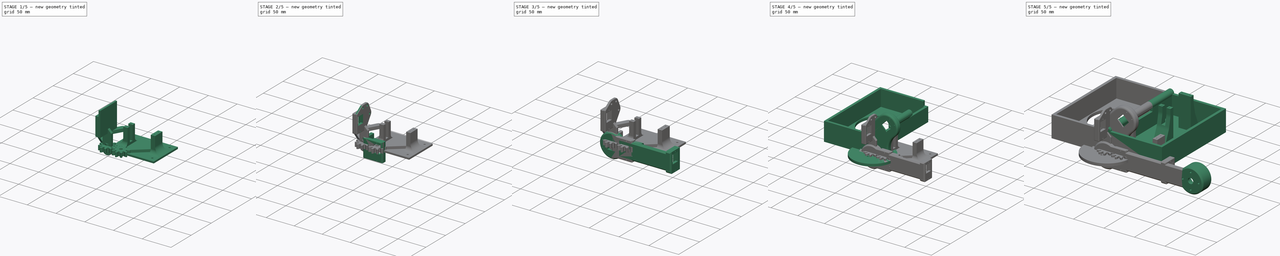
[diagram: build sequence overview — one tinted view per stage of 5, left to right]
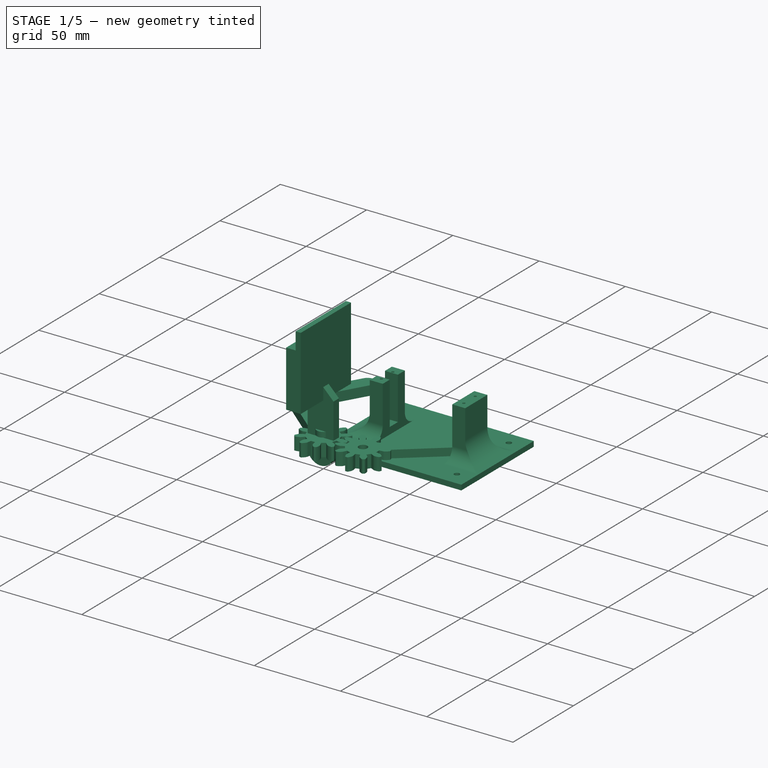
[diagram: stage 1 of 5 — iso view after this stage's code; geometry added in this stage tinted green]
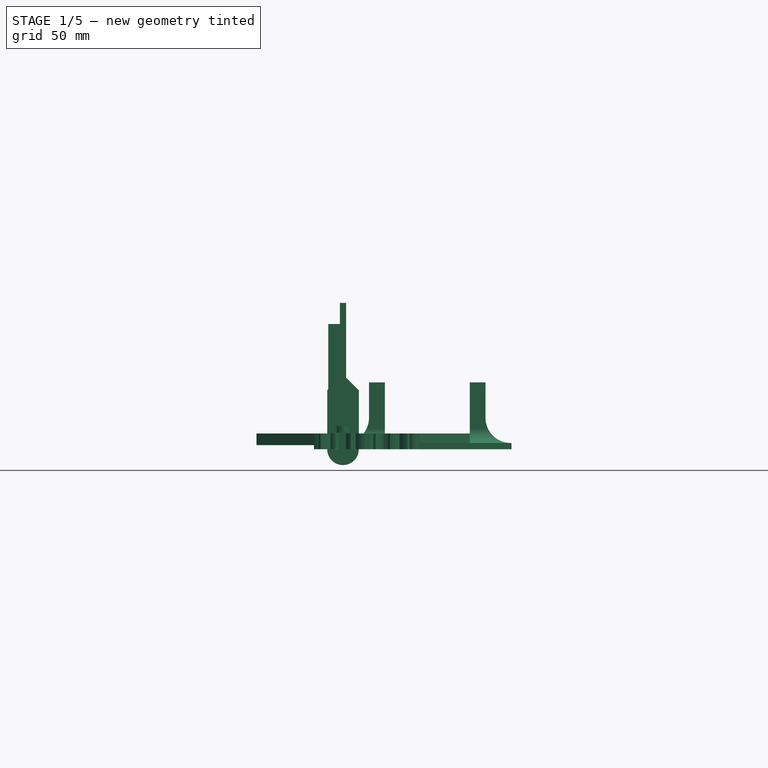
[diagram: stage 1 of 5 — front view after this stage's code; geometry added in this stage tinted green]
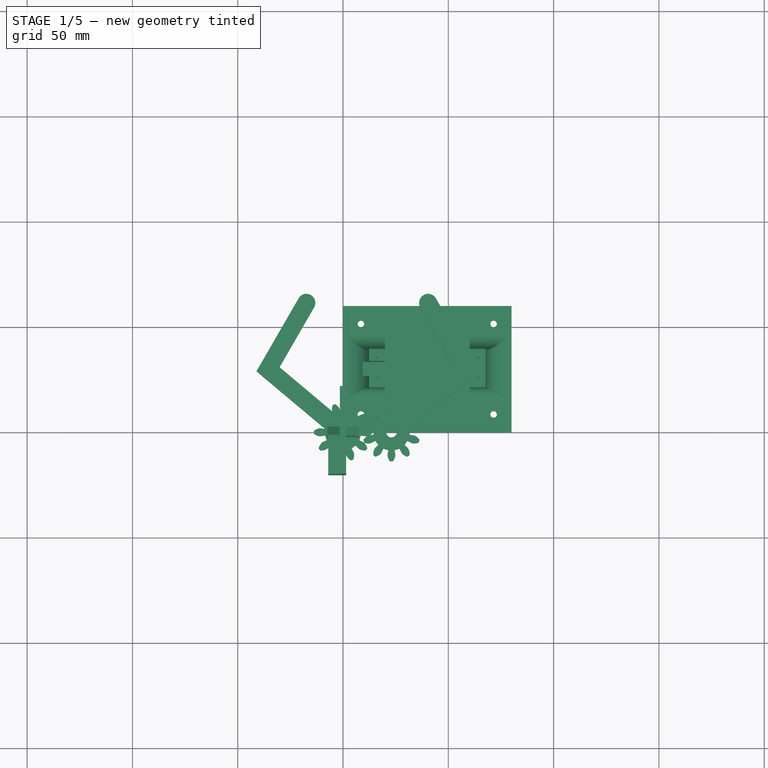
[diagram: stage 1 of 5 — top view after this stage's code; geometry added in this stage tinted green]
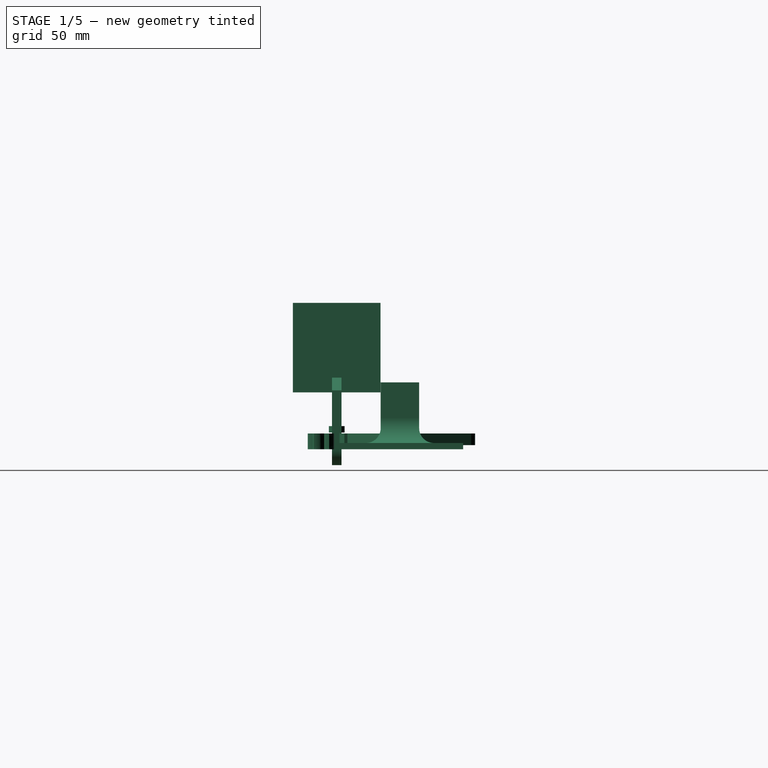
[diagram: stage 1 of 5 — right view after this stage's code; geometry added in this stage tinted green]
FCSTD DOCUMENT  (FreeCAD 0.21R33771 (Git))
Label: ARM
License: All rights reserved
LicenseURL: http://en.wikipedia.org/wiki/All_rights_reserved
objects: Sketcher::SketchObject×74, PartDesign::Pocket×39, PartDesign::Pad×31, PartDesign::Fillet×25, PartDesign::Body×11, PartDesign::Chamfer×9, PartDesign::Plane×3, PartDesign::FeaturePython×2, PartDesign::Revolution×1, PartDesign::Groove×1
note: 302 computed .brp shape members not serialized (recipe doc carries the construction recipe); baked Part::Feature solids carry a one-line shape summary decoded from their .brp

FEATURE [PartDesign::Body] Body005  label="End-Arm-Body"
  Group = -> [Sketch048,Pad018,Sketch049,Pad019,Sketch050,Pad020,Sketch051,Pocket023,Sketch052,Pocket024,Sketch053,Pocket025,Sketch054,Chamfer007,Chamfer008,Fillet010,Fillet013,Fillet014,Fillet015,Fillet016,Pocket026]
  Origin = -> Origin005
  Placement = pos=(102,0,0) rot=(0,0,1;0rad)
  Tip = -> Pocket026
FEATURE [Sketcher::SketchObject] Sketch055
  FullyConstrained = true
  MapMode = 5
  Placement = pos=(0,0,0) rot=(1,0,0;1.5708rad)
  Support = -> [XZ_Plane006]
  sketch-geometry (5):
    g0: ArcOfCircle CenterX=0 CenterY=0 CenterZ=0 NormalX=0 NormalY=0 NormalZ=1 AngleXU=0 Radius=7.5 StartAngle=3.14159 EndAngle=6.28319
    g1: LineSegment StartX=-7.5 StartY=3.6913e-12 StartZ=0 EndX=-7.5 EndY=28 EndZ=0
    g2: LineSegment StartX=7.5 StartY=28 StartZ=0 EndX=7.5 EndY=3.7552e-12 EndZ=0
    g3: LineSegment StartX=-7.5 StartY=28 StartZ=0 EndX=-9e-16 EndY=35.5 EndZ=0
    g4: LineSegment StartX=-9e-16 StartY=35.5 StartZ=0 EndX=7.5 EndY=28 EndZ=0
  constraints (13):
    c: Diameter(g0) = 15
    c: Vertical(g1)
    c: Vertical(g2)
    c: Coincident(g1,g3)
    c: PointOnObject(g3,g-2)
    c: Coincident(g3,g4)
    c: Coincident(g4,g2)
    c: Equal(g3,g4)
    c: Angle(g-1,g3) = 0.785398
    c: DistanceY(g2,g2) = 28
    c: Tangent(g0,g2) = 1.5708
    c: Tangent(g0,g1) = 1.5708
    c: Coincident(g0,g-1)
FEATURE [PartDesign::Pad] Pad021
  Direction = (0,-1,-2e-16)
  Length = 4.5
  Length2 = 10
  Midplane = true
  Placement = pos=(0,0,0) rot=(1,0,0;1.5708rad)
  Profile = -> Sketch055
  ReferenceAxis = -> Sketch055 [N_Axis]
  Type = 0
FEATURE [Sketcher::SketchObject] Sketch057
  FullyConstrained = true
  MapMode = 5
  Placement = pos=(0,1.5,0) rot=(-1,0,0;1.5708rad)
  sketch-geometry (3):
    g0: Circle CenterX=0 CenterY=0 CenterZ=0 NormalX=0 NormalY=0 NormalZ=1 AngleXU=0 Radius=3.75
    g1: Circle CenterX=0 CenterY=5 CenterZ=0 NormalX=0 NormalY=0 NormalZ=1 AngleXU=0 Radius=1
    g2: Circle CenterX=0 CenterY=-13.5 CenterZ=0 NormalX=0 NormalY=0 NormalZ=1 AngleXU=0 Radius=1.45
  constraints (8):
    c: Coincident(g0,g-1)
    c: PointOnObject(g1,g-2)
    c: PointOnObject(g2,g-2)
    c: DistanceY(g2,g0) = 13.5
    c: DistanceY(g0,g1) = 5
    c: Diameter(g0) = 7.5
    c: Diameter(g2) = 2.9
    c: Diameter(g1) = 2
FEATURE [Sketcher::SketchObject] Sketch056
  FullyConstrained = true
  MapMode = 5
  Placement = pos=(0,0,0) rot=(0.57735,0.57735,0.57735;2.0944rad)
  Support = -> [YZ_Plane006]
  sketch-geometry (4):
    g0: LineSegment StartX=-20.8 StartY=69.5 StartZ=0 EndX=20.8 EndY=69.5 EndZ=0
    g1: LineSegment StartX=20.8 StartY=69.5 StartZ=0 EndX=20.8 EndY=27 EndZ=0
    g2: LineSegment StartX=20.8 StartY=27 StartZ=0 EndX=-20.8 EndY=27 EndZ=0
    g3: LineSegment StartX=-20.8 StartY=27 StartZ=0 EndX=-20.8 EndY=69.5 EndZ=0
  constraints (11):
    c: Coincident(g0,g1)
    c: Coincident(g1,g2)
    c: Coincident(g2,g3)
    c: Coincident(g3,g0)
    c: Horizontal(g0)
    c: Vertical(g1)
    c: Vertical(g3)
    c: DistanceX(g0,g0) = 41.6
    c: DistanceY(g1,g1) = 42.5
    c: Symmetric(g2,g1,g-2)
    c: DistanceY(g-1,g2) = 27
FEATURE [PartDesign::Pad] Pad022
  BaseFeature = -> Pad021
  Direction = (1,-2e-16,3e-16)
  Length = 3
  Length2 = 10
  Midplane = true
  Placement = pos=(0,0,0) rot=(1,0,0;1.5708rad)
  Profile = -> Sketch056
  ReferenceAxis = -> Sketch056 [N_Axis]
  Type = 0
FEATURE [Sketcher::SketchObject] Sketch060
  FullyConstrained = true
  MapMode = 5
  Placement = pos=(-1.5,3e-16,-3e-16) rot=(0.707107,0,-0.707107;3.14159rad)
  Support = -> [Pad022]
  sketch-geometry (4):
    g0: LineSegment StartX=-27 StartY=2.2 StartZ=0 EndX=-59.5 EndY=2.2 EndZ=0
    g1: LineSegment StartX=-59.5 StartY=2.2 StartZ=0 EndX=-59.5 EndY=20.8 EndZ=0
    g2: LineSegment StartX=-59.5 StartY=20.8 StartZ=0 EndX=-27 EndY=20.8 EndZ=0
    g3: LineSegment StartX=-27 StartY=20.8 StartZ=0 EndX=-27 EndY=2.2 EndZ=0
  constraints (12):
    c: Coincident(g0,g1)
    c: Coincident(g1,g2)
    c: Coincident(g2,g3)
    c: Coincident(g3,g0)
    c: Horizontal(g0)
    c: Horizontal(g2)
    c: Vertical(g1)
    c: Vertical(g3)
    c: Distance(g1) = 18.6
    c: Distance(g2) = 32.5
    c: DistanceY(g-1,g2) = 20.8
    c: DistanceX(g0,g-1) = 27
FEATURE [PartDesign::Pad] Pad023
  BaseFeature = -> Pad022
  Direction = (-1,2e-16,-2e-16)
  Length = 5.5
  Length2 = 10
  Placement = pos=(0,0,0) rot=(1,0,0;1.5708rad)
  Profile = -> Sketch060
  ReferenceAxis = -> Sketch060 [N_Axis]
  Type = 0
FEATURE [PartDesign::Body] Body006  label="End-Effector-Base-Body"
  Group = -> [Sketch055,Pad021,Sketch056,Sketch057,Pad022,Sketch060,Pad023,Sketch061,Pocket027,Sketch062,Pocket028,Sketch063,Pocket029,Sketch064,Pocket030,Sketch065,Pocket031,Fillet017,Fillet018,Fillet019,Fillet020,Fillet021,Fillet022,Fillet023,Pocket032]
  Origin = -> Origin006
  Placement = pos=(127,-8,6) rot=(0,0,1;0rad)
  Tip = -> Pocket032
FEATURE [PartDesign::FeaturePython] InvoluteGear001  # WARN: FeaturePython — macro-defined, semantics opaque (R4)
  AttacherType = Attacher::AttachEngine3D
  Placement = pos=(23,0,0) rot=(0,0,1;0.314159rad)
  angular_backlash = 0
  backlash = 0
  beta = 0
  clearance = 0.25
  da = 27.6
  df = 17.25
  double_helix = false
  dw = 23
  head = 0
  head_fillet = 0
  height = 7.5
  module = 2.3
  numpoints = 6
  pressure_angle = 20
  properties_from_tool = false
  reversed_backlash = false
  root_fillet = 0
  shift = 0
  simple = false
  teeth = 10
  transverse_pitch = 7.22566
  traverse_module = 2.3
  undercut = false
  version = 0.0.4
  expr: angular_backlash = backlash / dw * 360 ° / pi
FEATURE [Sketcher::SketchObject] Sketch066
  FullyConstrained = false
  MapMode = 5
  Placement = pos=(23,0,7.5) rot=(0,0,1;0.314159rad)
  Support = -> [InvoluteGear001]
  sketch-geometry (11):
    g0: LineSegment StartX=0 StartY=0 StartZ=0 EndX=-54.2627 EndY=17.631 EndZ=0
    g1: LineSegment StartX=0 StartY=0 StartZ=0 EndX=27.9888 EndY=-9.09412 EndZ=0
    g2: LineSegment StartX=6.28822 StartY=-2.04317 StartZ=0 EndX=48.0115 EndY=14.8141 EndZ=0
    g3: LineSegment StartX=48.0115 StartY=14.8141 StartZ=0 EndX=39.695 EndY=53.94 EndZ=0
    g4: ArcOfCircle CenterX=35.5379 CenterY=53.0564 CenterZ=0 NormalX=0 NormalY=0 NormalZ=1 AngleXU=0 Radius=4.25 StartAngle=0.20944 EndAngle=3.35103
    g5: LineSegment StartX=31.3808 StartY=52.1728 StartZ=0 EndX=38.2143 EndY=20.0234 EndZ=0
    g6: LineSegment StartX=38.2143 StartY=20.0234 StartZ=0 EndX=-6.28822 EndY=2.04317 EndZ=0
    g7: LineSegment StartX=-6.28822 StartY=2.04317 StartZ=0 EndX=6.28822 EndY=-2.04317 EndZ=0
    g8: LineSegment StartX=31.3808 StartY=52.1728 StartZ=0 EndX=35.5379 EndY=53.0564 EndZ=0
    g9: LineSegment StartX=35.5379 StartY=53.0564 StartZ=0 EndX=39.695 EndY=53.94 EndZ=0
    g10: LineSegment StartX=20.9168 StartY=3.86715 StartZ=0 EndX=17.7326 EndY=11.7482 EndZ=0
  constraints (28):
    c: Angle(g-1,g0) = 2.82743
    c: Coincident(g1,g0)
    c: Parallel(g0,g1)
    c: Coincident(g-1,g0)
    c: Coincident(g2,g3)
    c: Tangent(g3,g4) = -1.5708
    c: Coincident(g4,g5)
    c: Coincident(g5,g6)
    c: PointOnObject(g6,g0)
    c: Coincident(g6,g7)
    c: Coincident(g7,g2)
    c: Coincident(g4,g8)
    c: Coincident(g8,g4)
    c: Coincident(g8,g9)
    c: Coincident(g9,g3)
    c: Parallel(g8,g9)
    c: Parallel(g5,g3)
    c: PointOnObject(g10,g2)
    c: PointOnObject(g10,g6)
    c: Perpendicular(g2,g10)
    c: Perpendicular(g10,g6)
    c: Distance(g4,g3) = 8.5
    c: Distance(g10,g10) = 8.5
    c: Symmetric(g6,g2,g0)
    c: Angle(g5,g6) = 1.74533
    c: Distance(g3) = 40
    c: Distance(g2) = 45
    c: Angle(g1,g2) = 0.698132
FEATURE [PartDesign::Pad] Pad024
  BaseFeature = -> InvoluteGear001
  Direction = (0,0,1)
  Length = 5.5
  Length2 = 10
  Placement = pos=(23,0,0) rot=(0,0,1;0.314159rad)
  Profile = -> Sketch066
  ReferenceAxis = -> Sketch066 [N_Axis]
  Reversed = true
  Type = 0
FEATURE [PartDesign::FeaturePython] InvoluteGear  # WARN: FeaturePython — macro-defined, semantics opaque (R4)
  AttacherType = Attacher::AttachEngine3D
  angular_backlash = 0
  backlash = 0
  beta = 0
  clearance = 0.25
  da = 27.6
  df = 17.25
  double_helix = false
  dw = 23
  head = 0
  head_fillet = 0
  height = 7.5
  module = 2.3
  numpoints = 6
  pressure_angle = 20
  properties_from_tool = false
  reversed_backlash = false
  root_fillet = 0
  shift = 0
  simple = false
  teeth = 10
  transverse_pitch = 7.22566
  traverse_module = 2.3
  undercut = false
  version = 0.0.4
  expr: angular_backlash = backlash / dw * 360 ° / pi
FEATURE [Sketcher::SketchObject] Sketch067
  FullyConstrained = true
  MapMode = 5
  Placement = pos=(23,0,7.5) rot=(0,0,1;0.314159rad)
  Support = -> [Pad024]
  sketch-geometry (1):
    g0: Circle CenterX=0 CenterY=0 CenterZ=0 NormalX=0 NormalY=0 NormalZ=1 AngleXU=0 Radius=2.5
  constraints (2):
    c: Coincident(g0,g-1)
    c: Diameter(g0) = 5
FEATURE [PartDesign::Pocket] Pocket033
  BaseFeature = -> Pad024
  Direction = (0,0,-1)
  Length = 7.5
  Length2 = 5
  Placement = pos=(23,0,0) rot=(0,0,1;0.314159rad)
  Profile = -> Sketch067
  ReferenceAxis = -> Sketch067 [N_Axis]
  Type = 0
FEATURE [PartDesign::Body] Body008  label="End-Effector-Gear-Body"
  Group = -> [InvoluteGear001,Sketch066,Pad024,Sketch067,Pocket033]
  Origin = -> Origin008
  Tip = -> Pocket033
FEATURE [Sketcher::SketchObject] Sketch068
  FullyConstrained = false
  MapMode = 5
  Placement = pos=(0,0,7.5) rot=(0,0,1;0rad)
  Support = -> [InvoluteGear]
  sketch-geometry (9):
    g0: LineSegment StartX=-6.61183 StartY=0 StartZ=0 EndX=-41.0838 EndY=28.9254 EndZ=0
    g1: LineSegment StartX=-41.0838 StartY=28.9254 StartZ=0 EndX=-21.0838 EndY=63.5665 EndZ=0
    g2: ArcOfCircle CenterX=-17.4032 CenterY=61.4415 CenterZ=0 NormalX=0 NormalY=0 NormalZ=1 AngleXU=0 Radius=4.25 StartAngle=5.75959 EndAngle=8.90118
    g3: LineSegment StartX=-13.7226 StartY=59.3165 StartZ=0 EndX=-30.1564 EndY=30.8522 EndZ=0
    g4: LineSegment StartX=-30.1564 StartY=30.8522 StartZ=0 EndX=6.61183 EndY=0 EndZ=0
    g5: LineSegment StartX=6.61183 StartY=0 StartZ=0 EndX=-6.61183 EndY=0 EndZ=0
    g6: LineSegment StartX=-26.9079 StartY=17.0304 StartZ=0 EndX=-21.4442 EndY=23.5418 EndZ=0
    g7: LineSegment StartX=-21.0838 StartY=63.5665 StartZ=0 EndX=-17.4032 EndY=61.4415 EndZ=0
    g8: LineSegment StartX=-17.4032 StartY=61.4415 StartZ=0 EndX=-13.7226 EndY=59.3165 EndZ=0
  constraints (24):
    c: Coincident(g0,g1)
    c: Tangent(g1,g2) = 1.5708
    c: Coincident(g2,g3)
    c: Coincident(g3,g4)
    c: PointOnObject(g4,g-1)
    c: Coincident(g4,g5)
    c: Coincident(g5,g0)
    c: Symmetric(g0,g4,g-1)
    c: PointOnObject(g6,g0)
    c: PointOnObject(g6,g4)
    c: Perpendicular(g0,g6)
    c: Perpendicular(g4,g6)
    c: Distance(g6) = 8.5
    c: Coincident(g1,g7)
    c: Coincident(g7,g2)
    c: Coincident(g7,g8)
    c: Coincident(g8,g2)
    c: Parallel(g7,g8)
    c: Parallel(g1,g3)
    c: Distance(g1,g2) = 8.5
    c: Angle(g4,g3) = 1.74533
    c: Angle(g-1,g0) = 2.44346
    c: Distance(g0) = 45
    c: Distance(g1) = 40
FEATURE [PartDesign::Pad] Pad025
  BaseFeature = -> InvoluteGear
  Direction = (0,0,1)
  Length = 5.5
  Length2 = 10
  Profile = -> Sketch068
  ReferenceAxis = -> Sketch068 [N_Axis]
  Reversed = true
  Type = 0
FEATURE [Sketcher::SketchObject] Sketch069
  FullyConstrained = true
  MapMode = 5
  Support = -> [XY_Plane009]
  sketch-geometry (1):
    g0: Circle CenterX=0 CenterY=0 CenterZ=0 NormalX=0 NormalY=0 NormalZ=1 AngleXU=0 Radius=2.25
  constraints (2):
    c: Coincident(g0,g-1)
    c: Diameter(g0) = 4.5
FEATURE [PartDesign::Pad] Pad026
  Direction = (0,0,1)
  Length = 8
  Length2 = 10
  Profile = -> Sketch069
  ReferenceAxis = -> Sketch069 [N_Axis]
  Type = 0
FEATURE [Sketcher::SketchObject] Sketch070
  FullyConstrained = true
  MapMode = 5
  Placement = pos=(0,0,8) rot=(0,0,1;0rad)
  Support = -> [Pad026]
  sketch-geometry (1):
    g0: Circle CenterX=0 CenterY=0 CenterZ=0 NormalX=0 NormalY=0 NormalZ=1 AngleXU=0 Radius=3.75
  constraints (2):
    c: Coincident(g0,g-1)
    c: Diameter(g0) = 7.5
FEATURE [PartDesign::Pad] Pad027
  BaseFeature = -> Pad026
  Direction = (0,0,1)
  Length = 3
  Length2 = 10
  Profile = -> Sketch070
  ReferenceAxis = -> Sketch070 [N_Axis]
  Type = 0
FEATURE [Sketcher::SketchObject] Sketch071
  FullyConstrained = true
  MapMode = 5
  Placement = pos=(0,0,11) rot=(0,0,1;0rad)
  Support = -> [Pad027]
  sketch-geometry (1):
    g0: Circle CenterX=0 CenterY=0 CenterZ=0 NormalX=0 NormalY=0 NormalZ=1 AngleXU=0 Radius=1.6
  constraints (2):
    c: Coincident(g0,g-1)
    c: Diameter(g0) = 3.2
FEATURE [PartDesign::Pocket] Pocket034
  BaseFeature = -> Pad027
  Direction = (0,0,-1)
  Length = 11
  Length2 = 5
  Profile = -> Sketch071
  ReferenceAxis = -> Sketch071 [N_Axis]
  Type = 0
FEATURE [PartDesign::Body] Body009  label="End-Effector-Joint-Body"
  Group = -> [Sketch069,Pad026,Sketch070,Pad027,Sketch071,Pocket034]
  Origin = -> Origin009
  Tip = -> Pocket034
FEATURE [Sketcher::SketchObject] Sketch072
  FullyConstrained = true
  MapMode = 5
  Placement = pos=(0,0,0) rot=(1,0,0;3.14159rad)
  Support = -> [Pad025]
  sketch-geometry (1):
    g0: Circle CenterX=0 CenterY=0 CenterZ=0 NormalX=0 NormalY=0 NormalZ=1 AngleXU=0 Radius=7.25
  constraints (2):
    c: Coincident(g0,g-1)
    c: Diameter(g0) = 14.5
FEATURE [PartDesign::Pocket] Pocket035
  BaseFeature = -> Pad025
  Direction = (0,0,1)
  Length = 3.5
  Length2 = 5
  Profile = -> Sketch072
  ReferenceAxis = -> Sketch072 [N_Axis]
  Type = 0
FEATURE [Sketcher::SketchObject] Sketch073
  FullyConstrained = true
  MapMode = 5
  Placement = pos=(0,0,3.5) rot=(1,0,0;3.14159rad)
  Support = -> [Pocket035]
  sketch-geometry (1):
    g0: Circle CenterX=0 CenterY=0 CenterZ=0 NormalX=0 NormalY=0 NormalZ=1 AngleXU=0 Radius=6
  constraints (2):
    c: Coincident(g0,g-1)
    c: Radius(g0) = 6
FEATURE [PartDesign::Pocket] Pocket036
  BaseFeature = -> Pocket035
  Direction = (0,0,1)
  Length = 1.5
  Length2 = 5
  Profile = -> Sketch073
  ReferenceAxis = -> Sketch073 [N_Axis]
  Type = 0
FEATURE [Sketcher::SketchObject] Sketch074
  FullyConstrained = true
  MapMode = 5
  Placement = pos=(0,0,5) rot=(1,0,0;3.14159rad)
  Support = -> [Pocket036]
  sketch-geometry (3):
    g0: Circle CenterX=-5.9 CenterY=0 CenterZ=0 NormalX=0 NormalY=0 NormalZ=1 AngleXU=0 Radius=1
    g1: Circle CenterX=5.9 CenterY=0 CenterZ=0 NormalX=0 NormalY=0 NormalZ=1 AngleXU=0 Radius=1
    g2: Circle CenterX=0 CenterY=0 CenterZ=0 NormalX=0 NormalY=0 NormalZ=1 AngleXU=0 Radius=2.5
  constraints (7):
    c: PointOnObject(g1,g-1)
    c: Equal(g0,g1)
    c: Symmetric(g0,g1,g-1)
    c: DistanceX(g0,g-1) = 5.9
    c: Diameter(g0) = 2
    c: Coincident(g2,g-1)
    c: Diameter(g2) = 5
FEATURE [PartDesign::Pocket] Pocket037
  BaseFeature = -> Pocket036
  Direction = (0,0,1)
  Length = 13
  Length2 = 5
  Midplane = true
  Profile = -> Sketch074
  ReferenceAxis = -> Sketch074 [N_Axis]
  Type = 0
FEATURE [Sketcher::SketchObject] Sketch075
  FullyConstrained = true
  MapMode = 5
  Placement = pos=(0,0,5) rot=(1,0,0;3.14159rad)
  Support = -> [Pocket037]
  sketch-geometry (8):
    g0: LineSegment StartX=-7.494 StartY=3.7 StartZ=0 EndX=7.494 EndY=3.7 EndZ=0
    g1: LineSegment StartX=-7.494 StartY=-3.7 StartZ=0 EndX=7.494 EndY=-3.7 EndZ=0
    g2: LineSegment StartX=-7.494 StartY=3.7 StartZ=0 EndX=-4.023 EndY=7.21648 EndZ=0
    g3: LineSegment StartX=-4.023 StartY=7.21648 StartZ=0 EndX=4.023 EndY=7.21648 EndZ=0
    g4: LineSegment StartX=4.023 StartY=7.21648 StartZ=0 EndX=7.494 EndY=3.7 EndZ=0
    g5: LineSegment StartX=7.494 StartY=-3.7 StartZ=0 EndX=4.023 EndY=-7.21648 EndZ=0
    g6: LineSegment StartX=4.023 StartY=-7.21648 StartZ=0 EndX=-4.023 EndY=-7.21648 EndZ=0
    g7: LineSegment StartX=-4.023 StartY=-7.21648 StartZ=0 EndX=-7.494 EndY=-3.7 EndZ=0
  constraints (22):
    c: Horizontal(g0)
    c: DistanceY(g1,g0) = 7.4
    c: Symmetric(g0,g1,g-1)
    c: Coincident(g0,g2)
    c: Coincident(g2,g3)
    c: Horizontal(g3)
    c: Coincident(g3,g4)
    c: Coincident(g4,g0)
    c: Coincident(g1,g5)
    c: Coincident(g5,g6)
    c: Horizontal(g6)
    c: Coincident(g6,g7)
    c: Coincident(g7,g1)
    c: Equal(g0,g1)
    c: Equal(g3,g6)
    c: Equal(g2,g4)
    c: Equal(g4,g5)
    c: Equal(g5,g7)
    c: Symmetric(g1,g1,g-2)
    c: DistanceX(g3,g3) = 8.046
    c: DistanceX(g0,g0) = 14.988
    c: Distance(g5) = 4.941
FEATURE [PartDesign::Pad] Pad028
  BaseFeature = -> Pocket037
  Direction = (0,0,-1)
  Length = 5
  Length2 = 10
  Profile = -> Sketch075
  ReferenceAxis = -> Sketch075 [N_Axis]
  Type = 0
FEATURE [Sketcher::SketchObject] Sketch076
  FullyConstrained = true
  MapMode = 5
  Placement = pos=(0,0,2) rot=(1,0,0;3.14159rad)
  Support = -> [Pad028]
FEATURE [Sketcher::SketchObject] Sketch077
  FullyConstrained = true
  MapMode = 5
  Placement = pos=(0,0,2) rot=(1,0,0;3.14159rad)
  Support = -> [Pad028]
FEATURE [PartDesign::Body] Body007  label="End-Effector-Gear-Servo-Body"
  Group = -> [InvoluteGear,Sketch068,Pad025,Sketch072,Pocket035,Sketch073,Pocket036,Sketch074,Pocket037,Sketch075,Pad028,Sketch076,Sketch077]
  Origin = -> Origin007
  Tip = -> Pad028
FEATURE [Sketcher::SketchObject] Sketch078
  FullyConstrained = true
  MapMode = 5
  Support = -> [XY_Plane010]
  sketch-geometry (4):
    g0: LineSegment StartX=0 StartY=0 StartZ=0 EndX=80 EndY=0 EndZ=0
    g1: LineSegment StartX=80 StartY=0 StartZ=0 EndX=80 EndY=60 EndZ=0
    g2: LineSegment StartX=80 StartY=60 StartZ=0 EndX=0 EndY=60 EndZ=0
    g3: LineSegment StartX=0 StartY=60 StartZ=0 EndX=0 EndY=0 EndZ=0
  constraints (11):
    c: Coincident(g0,g1)
    c: Coincident(g1,g2)
    c: Coincident(g2,g3)
    c: Coincident(g3,g0)
    c: Horizontal(g0)
    c: Horizontal(g2)
    c: Vertical(g1)
    c: Vertical(g3)
    c: Coincident(g0,g-1)
    c: DistanceX(g0,g0) = 80
    c: DistanceY(g1,g1) = 60
FEATURE [PartDesign::Pad] Pad029
  Direction = (0,0,1)
  Length = 3
  Length2 = 10
  Profile = -> Sketch078
  ReferenceAxis = -> Sketch078 [N_Axis]
  Type = 0
FEATURE [Sketcher::SketchObject] Sketch079
  FullyConstrained = true
  MapMode = 5
  Placement = pos=(0,0,3) rot=(0,0,1;0rad)
  Support = -> [Pad029]
  sketch-geometry (8):
    g0: LineSegment StartX=12.35 StartY=39.15 StartZ=0 EndX=19.85 EndY=39.15 EndZ=0
    g1: LineSegment StartX=19.85 StartY=39.15 StartZ=0 EndX=19.85 EndY=20.85 EndZ=0
    g2: LineSegment StartX=19.85 StartY=20.85 StartZ=0 EndX=12.35 EndY=20.85 EndZ=0
    g3: LineSegment StartX=12.35 StartY=20.85 StartZ=0 EndX=12.35 EndY=39.15 EndZ=0
    g4: LineSegment StartX=60.15 StartY=39.15 StartZ=0 EndX=67.65 EndY=39.15 EndZ=0
    g5: LineSegment StartX=67.65 StartY=39.15 StartZ=0 EndX=67.65 EndY=20.85 EndZ=0
    g6: LineSegment StartX=67.65 StartY=20.85 StartZ=0 EndX=60.15 EndY=20.85 EndZ=0
    g7: LineSegment StartX=60.15 StartY=20.85 StartZ=0 EndX=60.15 EndY=39.15 EndZ=0
  constraints (24):
    c: Coincident(g0,g1)
    c: Coincident(g1,g2)
    c: Coincident(g2,g3)
    c: Coincident(g3,g0)
    c: Horizontal(g0)
    c: Horizontal(g2)
    c: Vertical(g1)
    c: Vertical(g3)
    c: Coincident(g4,g5)
    c: Coincident(g5,g6)
    c: Coincident(g6,g7)
    c: Coincident(g7,g4)
    c: Horizontal(g4)
    c: Horizontal(g6)
    c: Vertical(g5)
    c: Vertical(g7)
    c: Equal(g0,g4)
    c: Equal(g1,g7)
    c: Horizontal(g0,g4)
    c: DistanceX(g0,g4) = 40.3
    c: DistanceX(g6,g6) = 7.5
    c: DistanceY(g5,g5) = 18.3
    c: DistanceY(g-1,g2) = 20.85
    c: DistanceX(g-1,g2) = 12.35
FEATURE [PartDesign::Pad] Pad030
  BaseFeature = -> Pad029
  Direction = (0,0,1)
  Length = 28.8
  Length2 = 10
  Profile = -> Sketch079
  ReferenceAxis = -> Sketch079 [N_Axis]
  Type = 0
FEATURE [Sketcher::SketchObject] Sketch080
  FullyConstrained = true
  MapMode = 5
  Placement = pos=(0,0,3) rot=(0,0,1;0rad)
  Support = -> [Pad030]
  sketch-geometry (4):
    g0: Circle CenterX=71.5 CenterY=51.5 CenterZ=0 NormalX=0 NormalY=0 NormalZ=1 AngleXU=0 Radius=1.55
    g1: Circle CenterX=8.5 CenterY=51.5 CenterZ=0 NormalX=0 NormalY=0 NormalZ=1 AngleXU=0 Radius=1.55
    g2: Circle CenterX=71.5 CenterY=8.5 CenterZ=0 NormalX=0 NormalY=0 NormalZ=1 AngleXU=0 Radius=1.55
    g3: Circle CenterX=8.5 CenterY=8.5 CenterZ=0 NormalX=0 NormalY=0 NormalZ=1 AngleXU=0 Radius=1.55
  constraints (12):
    c: Vertical(g1,g3)
    c: Vertical(g2,g0)
    c: Horizontal(g1,g0)
    c: Horizontal(g3,g2)
    c: Equal(g1,g0)
    c: Equal(g3,g2)
    c: Equal(g2,g0)
    c: DistanceX(g-1,g3) = 8.5
    c: DistanceY(g-1,g3) = 8.5
    c: DistanceY(g-1,g1) = 51.5
    c: DistanceX(g-1,g0) = 71.5
    c: Diameter(g0) = 3.1
FEATURE [PartDesign::Pocket] Pocket038
  BaseFeature = -> Pad030
  Direction = (0,0,-1)
  Length = 5
  Length2 = 5
  Profile = -> Sketch080
  ReferenceAxis = -> Sketch080 [N_Axis]
  Type = 0
FEATURE [Sketcher::SketchObject] Sketch081
  FullyConstrained = true
  MapMode = 5
  Placement = pos=(0,0,31.8) rot=(0,0,1;0rad)
  Support = -> [Pocket038]
  sketch-geometry (4):
    g0: Circle CenterX=16.1 CenterY=34.55 CenterZ=0 NormalX=0 NormalY=0 NormalZ=1 AngleXU=0 Radius=0.75
    g1: Circle CenterX=16.1 CenterY=25.05 CenterZ=0 NormalX=0 NormalY=0 NormalZ=1 AngleXU=0 Radius=0.75
    g2: Circle CenterX=63.9 CenterY=34.55 CenterZ=0 NormalX=0 NormalY=0 NormalZ=1 AngleXU=0 Radius=0.75
    g3: Circle CenterX=63.9 CenterY=25.05 CenterZ=0 NormalX=0 NormalY=0 NormalZ=1 AngleXU=0 Radius=0.75
  constraints (12):
    c: Equal(g0,g1)
    c: Equal(g3,g2)
    c: Equal(g2,g0)
    c: Vertical(g0,g1)
    c: Vertical(g2,g3)
    c: Horizontal(g0,g2)
    c: Horizontal(g3,g1)
    c: DistanceY(g3,g2) = 9.5
    c: Diameter(g2) = 1.5
    c: DistanceX(g-1,g1) = 16.1
    c: DistanceY(g-1,g1) = 25.05
    c: DistanceX(g1,g3) = 47.8
FEATURE [PartDesign::Pocket] Pocket039
  BaseFeature = -> Pocket038
  Direction = (0,0,-1)
  Length = 15
  Length2 = 5
  Profile = -> Sketch081
  ReferenceAxis = -> Sketch081 [N_Axis]
  Type = 0
FEATURE [Sketcher::SketchObject] Sketch082
  FullyConstrained = true
  MapMode = 5
  Placement = pos=(0,0,31.8) rot=(0,0,1;0rad)
  Support = -> [Pocket039]
  sketch-geometry (4):
    g0: LineSegment StartX=0.35 StartY=33.4 StartZ=0 EndX=19.85 EndY=33.4 EndZ=0
    g1: LineSegment StartX=19.85 StartY=33.4 StartZ=0 EndX=19.85 EndY=26.6 EndZ=0
    g2: LineSegment StartX=19.85 StartY=26.6 StartZ=0 EndX=0.35 EndY=26.6 EndZ=0
    g3: LineSegment StartX=0.35 StartY=26.6 StartZ=0 EndX=0.35 EndY=33.4 EndZ=0
  constraints (12):
    c: Coincident(g0,g1)
    c: Coincident(g1,g2)
    c: Coincident(g2,g3)
    c: Coincident(g3,g0)
    c: Horizontal(g0)
    c: Horizontal(g2)
    c: Vertical(g1)
    c: Vertical(g3)
    c: DistanceY(g1,g1) = 6.8
    c: DistanceY(g-1,g2) = 26.6
    c: DistanceX(g-1,g0) = 19.85
    c: DistanceX(g0,g0) = 19.5
FEATURE [PartDesign::Fillet] Fillet024
  Base = -> Pocket039 [Edge19,Edge27]
  BaseFeature = -> Pocket039
  Radius = 12
  SupportTransform = false
  UseAllEdges = false
FEATURE [PartDesign::Fillet] Fillet025
  Base = -> Fillet024 [Edge2,Edge20,Edge16,Edge6]
  BaseFeature = -> Fillet024
  Radius = 7
  SupportTransform = false
  UseAllEdges = false
FEATURE [PartDesign::Pocket] Pocket040
  BaseFeature = -> Fillet025
  Direction = (0,0,-1)
  Length = 24.8
  Length2 = 5
  Profile = -> Sketch082
  ReferenceAxis = -> Sketch082 [N_Axis]
  Type = 0
FEATURE [PartDesign::Body] Body010  label="Base-Support-Body"
  Group = -> [Sketch078,Pad029,Sketch079,Pad030,Sketch080,Pocket038,Sketch081,Pocket039,Sketch082,Fillet024,Fillet025,Pocket040]
  Origin = -> Origin010
  Tip = -> Pocket040
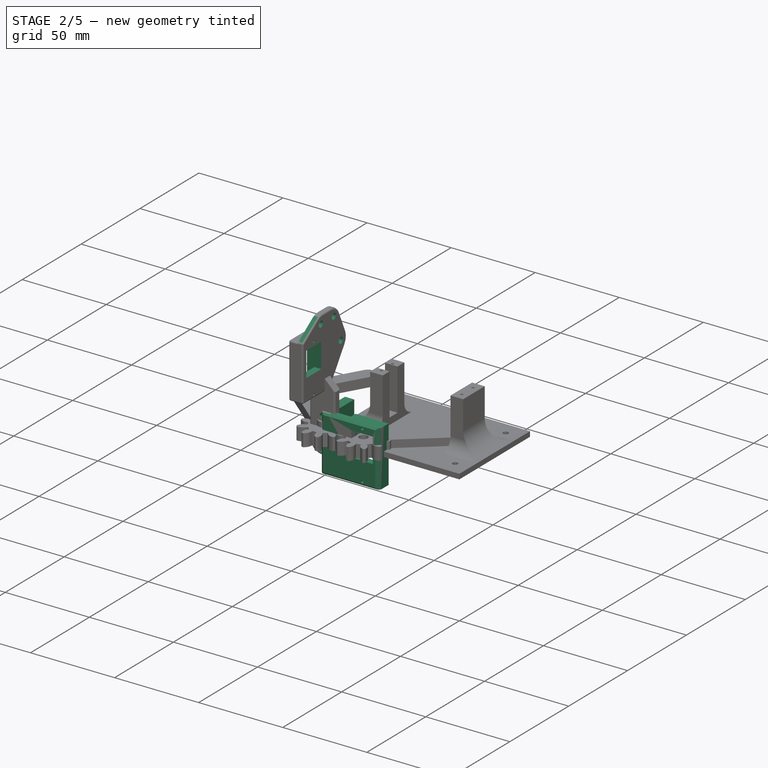
[diagram: stage 2 of 5 — iso view after this stage's code; geometry added in this stage tinted green]
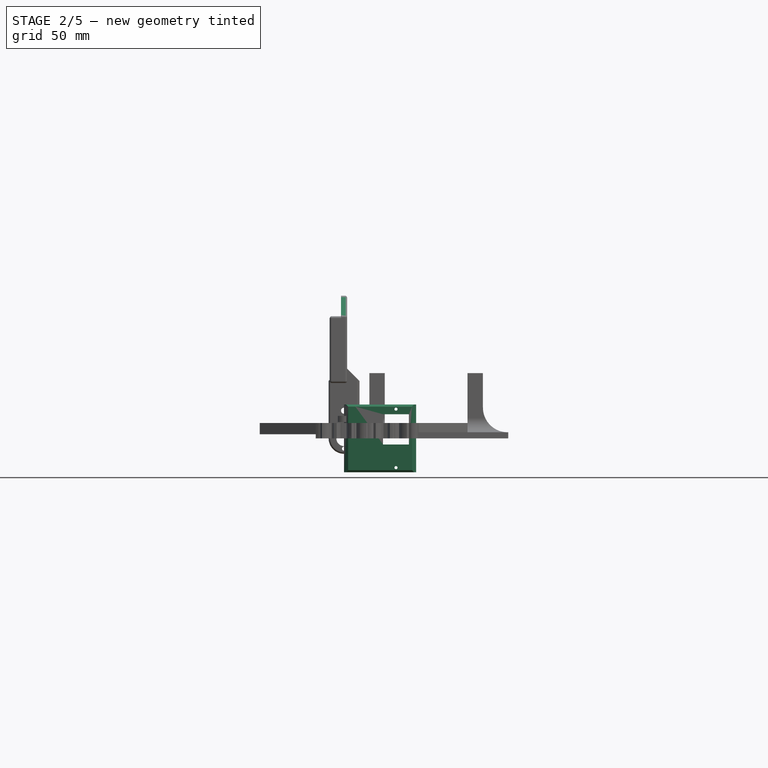
[diagram: stage 2 of 5 — front view after this stage's code; geometry added in this stage tinted green]
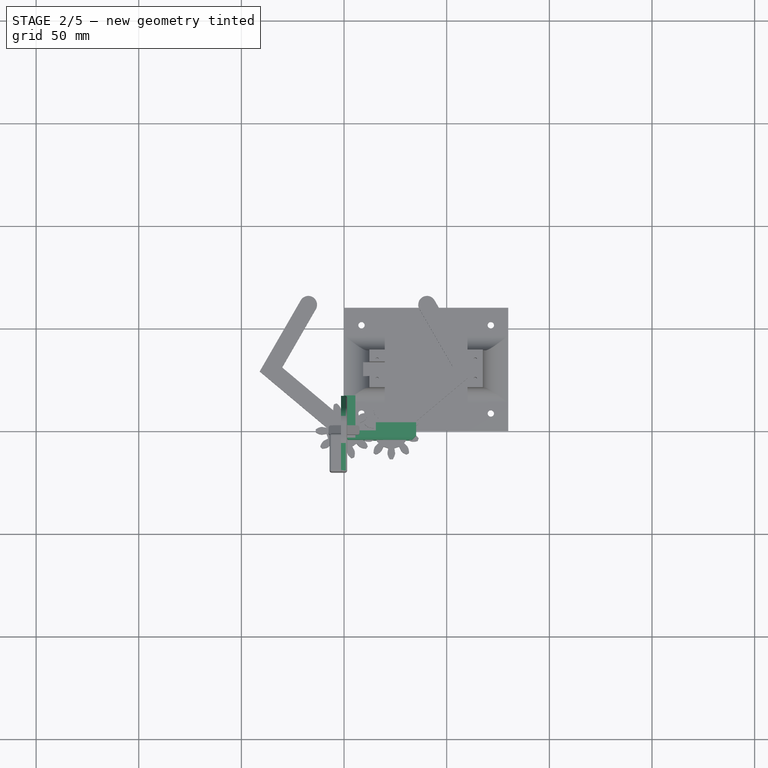
[diagram: stage 2 of 5 — top view after this stage's code; geometry added in this stage tinted green]
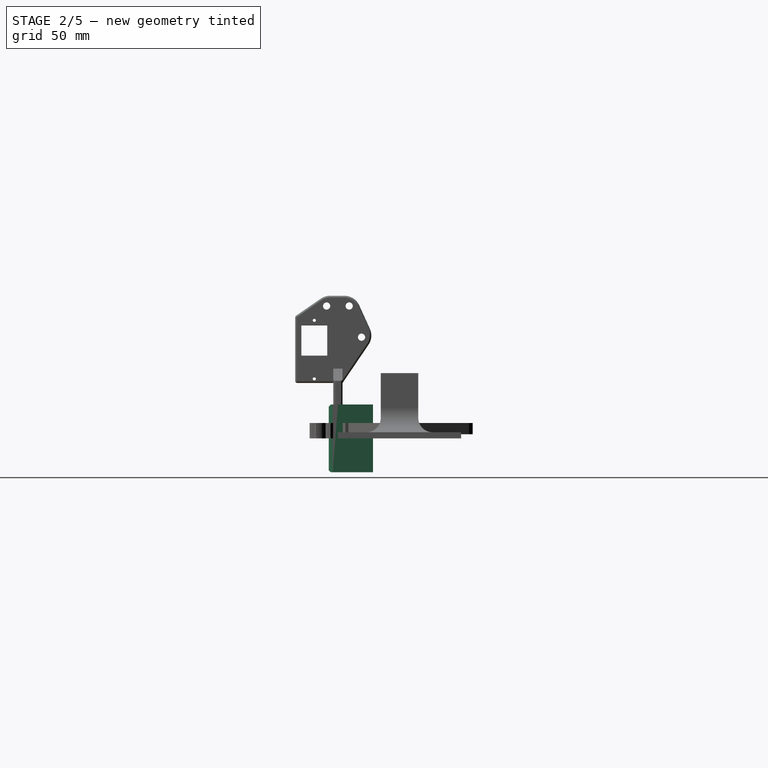
[diagram: stage 2 of 5 — right view after this stage's code; geometry added in this stage tinted green]
FEATURE [Sketcher::SketchObject] Sketch048
  FullyConstrained = true
  MapMode = 5
  Placement = pos=(0,0,0) rot=(0.57735,0.57735,0.57735;2.0944rad)
  Support = -> [YZ_Plane005]
  sketch-geometry (4):
    g0: LineSegment StartX=-4.5 StartY=16.5 StartZ=0 EndX=17.1 EndY=16.5 EndZ=0
    g1: LineSegment StartX=17.1 StartY=16.5 StartZ=0 EndX=17.1 EndY=-16.5 EndZ=0
    g2: LineSegment StartX=17.1 StartY=-16.5 StartZ=0 EndX=-4.5 EndY=-16.5 EndZ=0
    g3: LineSegment StartX=-4.5 StartY=-16.5 StartZ=0 EndX=-4.5 EndY=16.5 EndZ=0
  constraints (12):
    c: Coincident(g0,g1)
    c: Coincident(g1,g2)
    c: Coincident(g2,g3)
    c: Coincident(g3,g0)
    c: Horizontal(g0)
    c: Horizontal(g2)
    c: Vertical(g1)
    c: Vertical(g3)
    c: DistanceY(g1,g1) = 33
    c: DistanceY(g-1,g0) = 16.5
    c: DistanceX(g0,g0) = 21.6
    c: DistanceX(g0,g-1) = 4.5
FEATURE [PartDesign::Pad] Pad018
  Direction = (1,-2e-16,3e-16)
  Length = 5.5
  Length2 = 10
  Placement = pos=(0,0,0) rot=(0.57735,0.57735,0.57735;2.0944rad)
  Profile = -> Sketch048
  ReferenceAxis = -> Sketch048 [N_Axis]
  Type = 0
FEATURE [Sketcher::SketchObject] Sketch049
  FullyConstrained = true
  MapMode = 5
  Placement = pos=(5.5,-1.2e-15,1.2e-15) rot=(0.57735,0.57735,0.57735;2.0944rad)
  Support = -> [Pad018]
  sketch-geometry (4):
    g0: LineSegment StartX=-4.5 StartY=16.5 StartZ=0 EndX=0 EndY=16.5 EndZ=0
    g1: LineSegment StartX=0 StartY=16.5 StartZ=0 EndX=0 EndY=-16.5 EndZ=0
    g2: LineSegment StartX=0 StartY=-16.5 StartZ=0 EndX=-4.5 EndY=-16.5 EndZ=0
    g3: LineSegment StartX=-4.5 StartY=-16.5 StartZ=0 EndX=-4.5 EndY=16.5 EndZ=0
  constraints (12):
    c: Coincident(g0,g1)
    c: Coincident(g1,g2)
    c: Coincident(g2,g3)
    c: Coincident(g3,g0)
    c: Horizontal(g0)
    c: Horizontal(g2)
    c: Vertical(g1)
    c: Vertical(g3)
    c: PointOnObject(g1,g-2)
    c: DistanceX(g0,g0) = 4.5
    c: DistanceY(g3,g3) = 33
    c: DistanceY(g-1,g0) = 16.5
FEATURE [PartDesign::Pad] Pad019
  BaseFeature = -> Pad018
  Direction = (1,-4e-16,4e-16)
  Length = 29.6
  Length2 = 10
  Placement = pos=(0,0,0) rot=(0.57735,0.57735,0.57735;2.0944rad)
  Profile = -> Sketch049
  ReferenceAxis = -> Sketch049 [N_Axis]
  Type = 0
FEATURE [Sketcher::SketchObject] Sketch050
  FullyConstrained = true
  MapMode = 5
  Placement = pos=(0,0,0) rot=(0.57735,0.57735,0.57735;4.18879rad)
  Support = -> [Pad019]
  sketch-geometry (4):
    g0: LineSegment StartX=16.5 StartY=15.5 StartZ=0 EndX=-16.5 EndY=15.5 EndZ=0
    g1: LineSegment StartX=-16.5 StartY=15.5 StartZ=0 EndX=-16.5 EndY=35.1 EndZ=0
    g2: LineSegment StartX=-16.5 StartY=35.1 StartZ=0 EndX=16.5 EndY=35.1 EndZ=0
    g3: LineSegment StartX=16.5 StartY=35.1 StartZ=0 EndX=16.5 EndY=15.5 EndZ=0
  constraints (12):
    c: Coincident(g0,g1)
    c: Coincident(g1,g2)
    c: Coincident(g2,g3)
    c: Coincident(g3,g0)
    c: Horizontal(g0)
    c: Horizontal(g2)
    c: Vertical(g1)
    c: Vertical(g3)
    c: DistanceY(g3,g3) = 19.6
    c: DistanceX(g2,g2) = 33
    c: DistanceX(g0,g-1) = 16.5
    c: DistanceY(g-1,g2) = 35.1
FEATURE [PartDesign::Pad] Pad020
  BaseFeature = -> Pad019
  Direction = (5e-16,1,-3e-16)
  Length = 4
  Length2 = 10
  Placement = pos=(0,0,0) rot=(0.57735,0.57735,0.57735;2.0944rad)
  Profile = -> Sketch050
  ReferenceAxis = -> Sketch050 [N_Axis]
  Type = 0
FEATURE [Sketcher::SketchObject] Sketch051
  FullyConstrained = true
  MapMode = 5
  Placement = pos=(2.7e-15,4,-1.1e-15) rot=(0.57735,0.57735,0.57735;4.18879rad)
  Support = -> [Pad020]
  sketch-geometry (4):
    g0: LineSegment StartX=-11.75 StartY=31.6 StartZ=0 EndX=11.75 EndY=31.6 EndZ=0
    g1: LineSegment StartX=11.75 StartY=31.6 StartZ=0 EndX=11.75 EndY=19 EndZ=0
    g2: LineSegment StartX=11.75 StartY=19 StartZ=0 EndX=-11.75 EndY=19 EndZ=0
    g3: LineSegment StartX=-11.75 StartY=19 StartZ=0 EndX=-11.75 EndY=31.6 EndZ=0
  constraints (12):
    c: Coincident(g0,g1)
    c: Coincident(g1,g2)
    c: Coincident(g2,g3)
    c: Coincident(g3,g0)
    c: Horizontal(g0)
    c: Horizontal(g2)
    c: Vertical(g1)
    c: Vertical(g3)
    c: DistanceY(g1,g1) = 12.6
    c: DistanceX(g0,g0) = 23.5
    c: DistanceY(g-1,g0) = 31.6
    c: DistanceX(g-1,g1) = 11.75
FEATURE [PartDesign::Pocket] Pocket023
  BaseFeature = -> Pad020
  Direction = (-5e-16,-1,5e-16)
  Length = 4.5
  Length2 = 5
  Placement = pos=(0,0,0) rot=(0.57735,0.57735,0.57735;2.0944rad)
  Profile = -> Sketch051
  ReferenceAxis = -> Sketch051 [N_Axis]
  Type = 0
FEATURE [Sketcher::SketchObject] Sketch052
  FullyConstrained = true
  MapMode = 5
  Placement = pos=(-3e-16,-0.5,3e-16) rot=(0.57735,0.57735,0.57735;4.18879rad)
  Support = -> [Pocket023]
  sketch-geometry (4):
    g0: LineSegment StartX=-2.95 StartY=31.6 StartZ=0 EndX=11.75 EndY=31.6 EndZ=0
    g1: LineSegment StartX=11.75 StartY=31.6 StartZ=0 EndX=11.75 EndY=19 EndZ=0
    g2: LineSegment StartX=11.75 StartY=19 StartZ=0 EndX=-2.95 EndY=19 EndZ=0
    g3: LineSegment StartX=-2.95 StartY=19 StartZ=0 EndX=-2.95 EndY=31.6 EndZ=0
  constraints (12):
    c: Coincident(g0,g1)
    c: Coincident(g1,g2)
    c: Coincident(g2,g3)
    c: Coincident(g3,g0)
    c: Horizontal(g0)
    c: Horizontal(g2)
    c: Vertical(g1)
    c: Vertical(g3)
    c: DistanceX(g0,g0) = 14.7
    c: DistanceY(g3,g3) = 12.6
    c: DistanceX(g-1,g1) = 11.75
    c: DistanceY(g-1,g0) = 31.6
FEATURE [PartDesign::Pocket] Pocket024
  BaseFeature = -> Pocket023
  Direction = (-6e-16,-1,3e-16)
  Length = 4
  Length2 = 5
  Placement = pos=(0,0,0) rot=(0.57735,0.57735,0.57735;2.0944rad)
  Profile = -> Sketch052
  ReferenceAxis = -> Sketch052 [N_Axis]
  Type = 0
FEATURE [Sketcher::SketchObject] Sketch053
  FullyConstrained = true
  MapMode = 5
  Placement = pos=(2.7e-15,4,-1.1e-15) rot=(0.57735,0.57735,0.57735;4.18879rad)
  Support = -> [Pocket024]
  sketch-geometry (2):
    g0: Circle CenterX=-14.25 CenterY=25.3 CenterZ=0 NormalX=0 NormalY=0 NormalZ=1 AngleXU=0 Radius=0.75
    g1: Circle CenterX=14.25 CenterY=25.3 CenterZ=0 NormalX=0 NormalY=0 NormalZ=1 AngleXU=0 Radius=0.75
  constraints (6):
    c: Equal(g0,g1)
    c: Diameter(g1) = 1.5
    c: DistanceX(g0,g-1) = 14.25
    c: DistanceX(g-1,g1) = 14.25
    c: DistanceY(g-1,g0) = 25.3
    c: Horizontal(g0,g1)
FEATURE [PartDesign::Pocket] Pocket025
  BaseFeature = -> Pocket024
  Direction = (-7e-16,-1,2e-16)
  Length = 9
  Length2 = 5
  Placement = pos=(0,0,0) rot=(0.57735,0.57735,0.57735;2.0944rad)
  Profile = -> Sketch053
  ReferenceAxis = -> Sketch053 [N_Axis]
  Type = 0
FEATURE [Sketcher::SketchObject] Sketch054
  FullyConstrained = true
  MapMode = 5
  Placement = pos=(0,0,0) rot=(0.57735,0.57735,-0.57735;4.18879rad)
  Support = -> [Pocket025]
  sketch-geometry (3):
    g0: Circle CenterX=6.3 CenterY=-5.75 CenterZ=0 NormalX=0 NormalY=0 NormalZ=1 AngleXU=0 Radius=3.75
    g1: Circle CenterX=6.3 CenterY=-13.75 CenterZ=0 NormalX=0 NormalY=0 NormalZ=1 AngleXU=0 Radius=1.45
    g2: Circle CenterX=6.3 CenterY=13.5 CenterZ=0 NormalX=0 NormalY=0 NormalZ=1 AngleXU=0 Radius=1.45
  constraints (9):
    c: DistanceY(g0,g-1) = 5.75
    c: DistanceX(g-1,g0) = 6.3
    c: Diameter(g0) = 7.5
    c: Vertical(g1,g0)
    c: DistanceY(g1,g0) = 8
    c: Diameter(g1) = 2.9
    c: Equal(g2,g1)
    c: Vertical(g2,g0)
    c: DistanceY(g-1,g2) = 13.5
FEATURE [PartDesign::Chamfer] Chamfer007
  Angle = 45
  Base = -> Pocket025 [Edge13,Edge20]
  BaseFeature = -> Pocket025
  ChamferType = 0
  FlipDirection = false
  Placement = pos=(0,0,0) rot=(0.57735,0.57735,0.57735;2.0944rad)
  Size = 1
  Size2 = 1
  SupportTransform = false
  UseAllEdges = false
FEATURE [PartDesign::Chamfer] Chamfer008
  Angle = 45
  Base = -> Chamfer007 [Edge8,Edge31]
  BaseFeature = -> Chamfer007
  ChamferType = 0
  FlipDirection = false
  Placement = pos=(0,0,0) rot=(0.57735,0.57735,0.57735;2.0944rad)
  Size = 2
  Size2 = 1
  SupportTransform = false
  UseAllEdges = false
FEATURE [Sketcher::SketchObject] Sketch061
  FullyConstrained = true
  MapMode = 5
  Placement = pos=(-7,1.5e-15,-1.5e-15) rot=(0.707107,0,-0.707107;3.14159rad)
  Support = -> [Pad023]
  sketch-geometry (4):
    g0: LineSegment StartX=-55 StartY=17.8 StartZ=0 EndX=-31.5 EndY=17.8 EndZ=0
    g1: LineSegment StartX=-31.5 StartY=17.8 StartZ=0 EndX=-31.5 EndY=5.2 EndZ=0
    g2: LineSegment StartX=-31.5 StartY=5.2 StartZ=0 EndX=-55 EndY=5.2 EndZ=0
    g3: LineSegment StartX=-55 StartY=5.2 StartZ=0 EndX=-55 EndY=17.8 EndZ=0
  constraints (12):
    c: Coincident(g0,g1)
    c: Coincident(g1,g2)
    c: Coincident(g2,g3)
    c: Coincident(g3,g0)
    c: Horizontal(g0)
    c: Horizontal(g2)
    c: Vertical(g1)
    c: Vertical(g3)
    c: DistanceX(g0,g0) = 23.5
    c: DistanceY(g1,g1) = 12.6
    c: DistanceX(g0,g-1) = 31.5
    c: DistanceY(g-1,g0) = 17.8
FEATURE [PartDesign::Pocket] Pocket027
  BaseFeature = -> Pad023
  Direction = (1,-2e-16,2e-16)
  Length = 4.4
  Length2 = 5
  Placement = pos=(0,0,0) rot=(1,0,0;1.5708rad)
  Profile = -> Sketch061
  ReferenceAxis = -> Sketch061 [N_Axis]
  Type = 0
FEATURE [Sketcher::SketchObject] Sketch062
  FullyConstrained = true
  MapMode = 5
  Placement = pos=(-2.6,5e-16,-6e-16) rot=(0.707107,0,-0.707107;3.14159rad)
  Support = -> [Pocket027]
  sketch-geometry (4):
    g0: LineSegment StartX=-55 StartY=17.8 StartZ=0 EndX=-40.3 EndY=17.8 EndZ=0
    g1: LineSegment StartX=-40.3 StartY=17.8 StartZ=0 EndX=-40.3 EndY=5.2 EndZ=0
    g2: LineSegment StartX=-40.3 StartY=5.2 StartZ=0 EndX=-55 EndY=5.2 EndZ=0
    g3: LineSegment StartX=-55 StartY=5.2 StartZ=0 EndX=-55 EndY=17.8 EndZ=0
  constraints (12):
    c: Coincident(g0,g1)
    c: Coincident(g1,g2)
    c: Coincident(g2,g3)
    c: Coincident(g3,g0)
    c: Horizontal(g0)
    c: Horizontal(g2)
    c: Vertical(g1)
    c: Vertical(g3)
    c: DistanceX(g0,g0) = 14.7
    c: DistanceY(g1,g1) = 12.6
    c: DistanceX(g1,g-1) = 40.3
    c: DistanceY(g-1,g0) = 17.8
FEATURE [PartDesign::Pocket] Pocket028
  BaseFeature = -> Pocket027
  Direction = (1,-2e-16,2e-16)
  Length = 4.1
  Length2 = 5
  Placement = pos=(0,0,0) rot=(1,0,0;1.5708rad)
  Profile = -> Sketch062
  ReferenceAxis = -> Sketch062 [N_Axis]
  Type = 0
FEATURE [Sketcher::SketchObject] Sketch063
  FullyConstrained = true
  MapMode = 5
  Placement = pos=(-7,1.5e-15,-1.5e-15) rot=(0.707107,0,-0.707107;3.14159rad)
  Support = -> [Pocket028]
  sketch-geometry (2):
    g0: Circle CenterX=-57.5 CenterY=11.5 CenterZ=0 NormalX=0 NormalY=0 NormalZ=1 AngleXU=0 Radius=0.75
    g1: Circle CenterX=-29 CenterY=11.5 CenterZ=0 NormalX=0 NormalY=0 NormalZ=1 AngleXU=0 Radius=0.75
  constraints (6):
    c: Horizontal(g0,g1)
    c: Equal(g0,g1)
    c: Diameter(g0) = 1.5
    c: DistanceY(g-1,g1) = 11.5
    c: DistanceX(g1,g-1) = 29
    c: DistanceX(g0,g-1) = 57.5
FEATURE [PartDesign::Pocket] Pocket029
  BaseFeature = -> Pocket028
  Direction = (1,-2e-16,2e-16)
  Length = 8.5
  Length2 = 5
  Placement = pos=(0,0,0) rot=(1,0,0;1.5708rad)
  Profile = -> Sketch063
  ReferenceAxis = -> Sketch063 [N_Axis]
  Type = 0
FEATURE [Sketcher::SketchObject] Sketch064
  FullyConstrained = true
  MapMode = 5
  Placement = pos=(1.5,-3e-16,3e-16) rot=(0.707107,0,0.707107;3.14159rad)
  Support = -> [Pocket029]
  sketch-geometry (10):
    g0: LineSegment StartX=27 StartY=20.8 StartZ=0 EndX=69.5 EndY=20.8 EndZ=0
    g1: LineSegment StartX=69.5 StartY=20.8 StartZ=0 EndX=69.5 EndY=-20.8 EndZ=0
    g2: LineSegment StartX=69.5 StartY=-20.8 StartZ=0 EndX=27 EndY=-20.8 EndZ=0
    g3: LineSegment StartX=27 StartY=-20.8 StartZ=0 EndX=27 EndY=20.8 EndZ=0
    g4: LineSegment StartX=27 StartY=11.5 StartZ=0 EndX=69.5 EndY=11.5 EndZ=0
    g5: LineSegment StartX=49.3 StartY=20.8 StartZ=0 EndX=49.3 EndY=11.5 EndZ=0
    g6: LineSegment StartX=49.3 StartY=11.5 StartZ=0 EndX=49.3 EndY=-20.8 EndZ=0
    g7: Circle CenterX=49.3 CenterY=-11.5 CenterZ=0 NormalX=0 NormalY=0 NormalZ=1 AngleXU=0 Radius=1.75
    g8: Circle CenterX=64.5 CenterY=5.5 CenterZ=0 NormalX=0 NormalY=0 NormalZ=1 AngleXU=0 Radius=1.75
    g9: Circle CenterX=64.5 CenterY=-5.5 CenterZ=0 NormalX=0 NormalY=0 NormalZ=1 AngleXU=0 Radius=1.75
  constraints (29):
    c: Coincident(g0,g1)
    c: Coincident(g1,g2)
    c: Coincident(g2,g3)
    c: Coincident(g3,g0)
    c: Horizontal(g0)
    c: Horizontal(g2)
    c: Vertical(g1)
    c: DistanceY(g1,g1) = 41.6
    c: DistanceX(g0,g0) = 42.5
    c: DistanceX(g-1,g0) = 27
    c: Symmetric(g0,g2,g-1)
    c: PointOnObject(g4,g3)
    c: PointOnObject(g4,g1)
    c: Horizontal(g4)
    c: PointOnObject(g5,g0)
    c: PointOnObject(g5,g4)
    c: Vertical(g5)
    c: Coincident(g5,g6)
    c: PointOnObject(g6,g2)
    c: DistanceY(g-1,g4) = 11.5
    c: DistanceX(g0,g5) = 22.3
    c: PointOnObject(g7,g6)
    c: Symmetric(g5,g7,g-1)
    c: Diameter(g7) = 3.5
    c: Equal(g7,g9)
    c: Equal(g9,g8)
    c: Symmetric(g8,g9,g-1)
    c: DistanceX(g5,g8) = 15.2
    c: DistanceY(g8,g5) = 6
FEATURE [PartDesign::Pocket] Pocket030
  BaseFeature = -> Pocket029
  Direction = (-1,2e-16,-2e-16)
  Length = 3
  Length2 = 5
  Placement = pos=(0,0,0) rot=(1,0,0;1.5708rad)
  Profile = -> Sketch064
  ReferenceAxis = -> Sketch064 [N_Axis]
  Type = 0
FEATURE [Sketcher::SketchObject] Sketch065
  FullyConstrained = true
  MapMode = 5
  Placement = pos=(-1.5,3e-16,-3e-16) rot=(0.707107,0,-0.707107;3.14159rad)
  Support = -> [Pocket030]
  sketch-geometry (8):
    g0: LineSegment StartX=-59.5 StartY=20.8 StartZ=0 EndX=-69.5 EndY=6.309 EndZ=0
    g1: LineSegment StartX=-69.5 StartY=6.309 StartZ=0 EndX=-69.5 EndY=20.8 EndZ=0
    g2: LineSegment StartX=-69.5 StartY=20.8 StartZ=0 EndX=-59.5 EndY=20.8 EndZ=0
    g3: LineSegment StartX=-69.5 StartY=-8.25 StartZ=0 EndX=-69.5 EndY=-20.8 EndZ=0
    g4: LineSegment StartX=-69.5 StartY=-20.8 StartZ=0 EndX=-27 EndY=-20.8 EndZ=0
    g5: LineSegment StartX=-27 StartY=-20.8 StartZ=0 EndX=-27 EndY=-2.25 EndZ=0
    g6: LineSegment StartX=-27 StartY=-2.25 StartZ=0 EndX=-49.3443 EndY=-17.4016 EndZ=0
    g7: LineSegment StartX=-49.3443 StartY=-17.4016 StartZ=0 EndX=-69.5 EndY=-8.25 EndZ=0
  constraints (24):
    c: Coincident(g0,g1)
    c: Coincident(g1,g2)
    c: Coincident(g2,g0)
    c: Horizontal(g2)
    c: Vertical(g3)
    c: Coincident(g3,g4)
    c: Horizontal(g4)
    c: Coincident(g4,g5)
    c: Vertical(g5)
    c: Coincident(g5,g6)
    c: Coincident(g6,g7)
    c: Coincident(g7,g3)
    c: DistanceX(g3,g-1) = 69.5
    c: Vertical(g0,g3)
    c: DistanceX(g4,g4) = 42.5
    c: DistanceY(g5,g5) = 18.55
    c: DistanceX(g2,g2) = 10
    c: DistanceY(g3,g-1) = 20.8
    c: DistanceY(g-1,g1) = 20.8
    c: Vertical(g1)
    c: DistanceY(g-1,g0) = 6.309
    c: Distance(g7) = 22.136
    c: Distance(g6) = 26.997
    c: Distance(g3) = 12.55
FEATURE [PartDesign::Pocket] Pocket031
  BaseFeature = -> Pocket030
  Direction = (1,-2e-16,2e-16)
  Length = 3
  Length2 = 5
  Placement = pos=(0,0,0) rot=(1,0,0;1.5708rad)
  Profile = -> Sketch065
  ReferenceAxis = -> Sketch065 [N_Axis]
  Type = 0
FEATURE [PartDesign::Fillet] Fillet017
  Base = -> Pocket031 [Edge57]
  BaseFeature = -> Pocket031
  Placement = pos=(0,0,0) rot=(1,0,0;1.5708rad)
  Radius = 1
  SupportTransform = false
  UseAllEdges = false
FEATURE [PartDesign::Fillet] Fillet018
  Base = -> Fillet017 [Edge10]
  BaseFeature = -> Fillet017
  Placement = pos=(0,0,0) rot=(1,0,0;1.5708rad)
  Radius = 1
  SupportTransform = false
  UseAllEdges = false
FEATURE [PartDesign::Fillet] Fillet019
  Base = -> Fillet018 [Edge27]
  BaseFeature = -> Fillet018
  Placement = pos=(0,0,0) rot=(1,0,0;1.5708rad)
  Radius = 1
  SupportTransform = false
  UseAllEdges = false
FEATURE [PartDesign::Fillet] Fillet020
  Base = -> Fillet019 [Edge54]
  BaseFeature = -> Fillet019
  Placement = pos=(0,0,0) rot=(1,0,0;1.5708rad)
  Radius = 1
  SupportTransform = false
  UseAllEdges = false
FEATURE [PartDesign::Fillet] Fillet021
  Base = -> Fillet020 [Edge68,Edge75,Edge76]
  BaseFeature = -> Fillet020
  Placement = pos=(0,0,0) rot=(1,0,0;1.5708rad)
  Radius = 8
  SupportTransform = false
  UseAllEdges = false
FEATURE [PartDesign::Fillet] Fillet022
  Base = -> Fillet021 [Edge79,Edge29,Edge22]
  BaseFeature = -> Fillet021
  Placement = pos=(0,0,0) rot=(1,0,0;1.5708rad)
  Radius = 1
  SupportTransform = false
  UseAllEdges = false
FEATURE [PartDesign::Fillet] Fillet023
  Base = -> Fillet022 [Edge38]
  BaseFeature = -> Fillet022
  Placement = pos=(0,0,0) rot=(1,0,0;1.5708rad)
  Radius = 1
  SupportTransform = false
  UseAllEdges = false
FEATURE [PartDesign::Pocket] Pocket032
  BaseFeature = -> Fillet023
  Direction = (0,-1,-2e-16)
  Length = 9
  Length2 = 5
  Midplane = true
  Placement = pos=(0,0,0) rot=(1,0,0;1.5708rad)
  Profile = -> Sketch057
  ReferenceAxis = -> Sketch057 [N_Axis]
  Type = 0
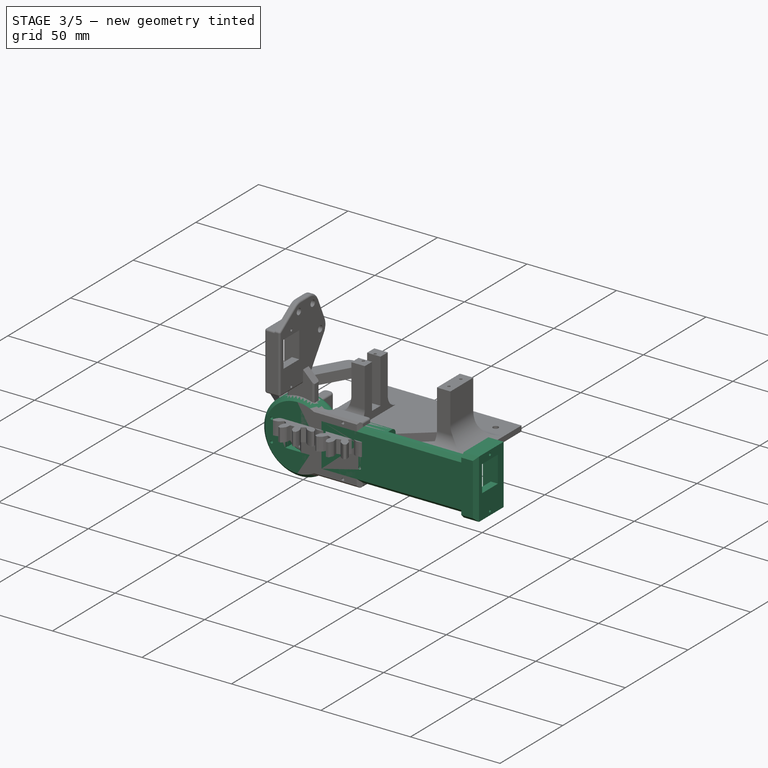
[diagram: stage 3 of 5 — iso view after this stage's code; geometry added in this stage tinted green]
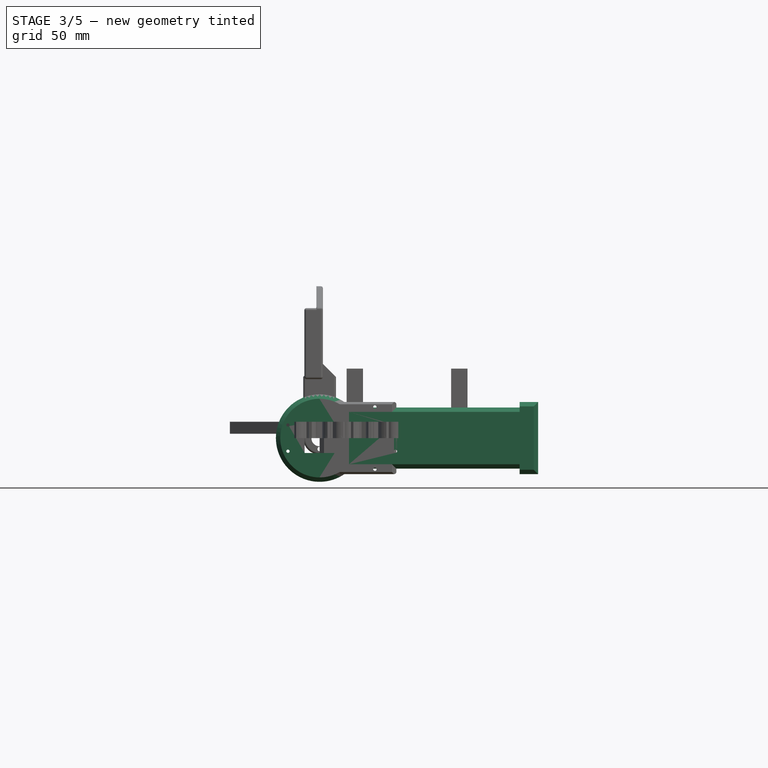
[diagram: stage 3 of 5 — front view after this stage's code; geometry added in this stage tinted green]
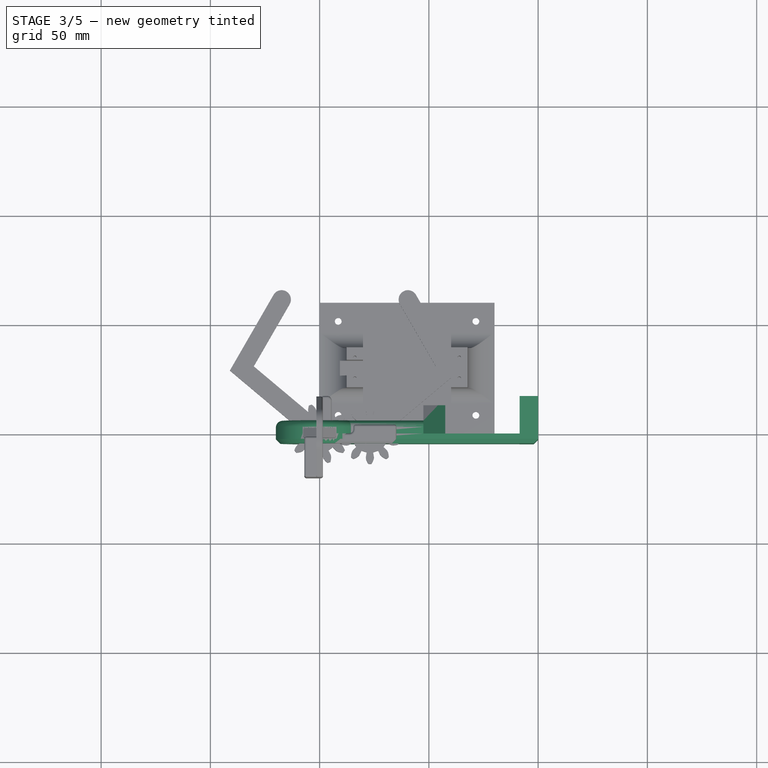
[diagram: stage 3 of 5 — top view after this stage's code; geometry added in this stage tinted green]
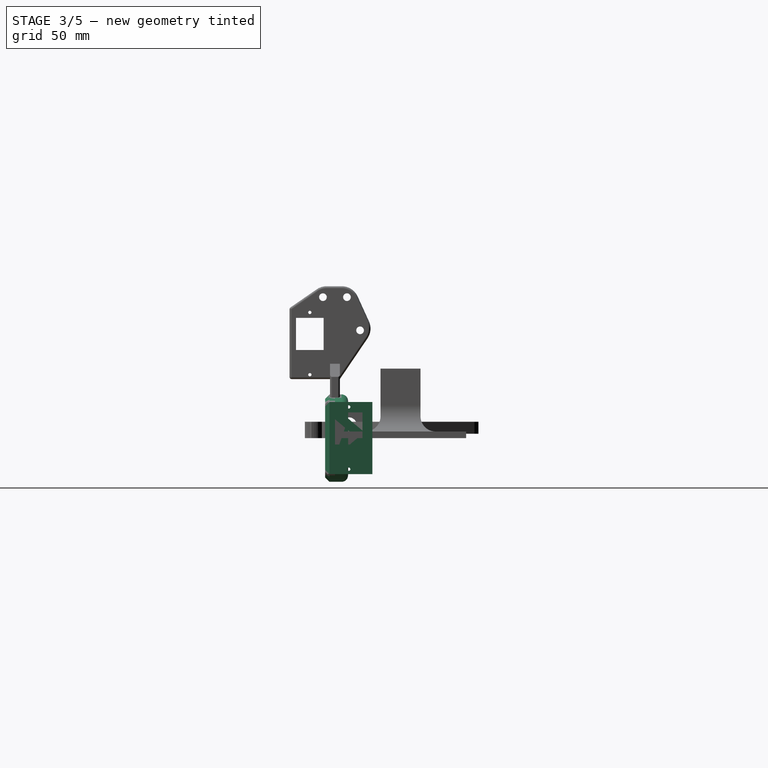
[diagram: stage 3 of 5 — right view after this stage's code; geometry added in this stage tinted green]
FEATURE [Sketcher::SketchObject] Sketch031
  FullyConstrained = true
  MapMode = 5
  Placement = pos=(0,0,0) rot=(1,0,0;1.5708rad)
  Support = -> [XZ_Plane004]
  sketch-geometry (4):
    g0: ArcOfCircle CenterX=0 CenterY=0 CenterZ=0 NormalX=0 NormalY=0 NormalZ=1 AngleXU=0 Radius=20 StartAngle=0.775397 EndAngle=5.50779
    g1: LineSegment StartX=14.2829 StartY=14 StartZ=0 EndX=100 EndY=14 EndZ=0
    g2: LineSegment StartX=100 StartY=14 StartZ=0 EndX=100 EndY=-14 EndZ=0
    g3: LineSegment StartX=100 StartY=-14 StartZ=0 EndX=14.2829 EndY=-14 EndZ=0
  constraints (12):
    c: Coincident(g0,g-1)
    c: Diameter(g0) = 40
    c: Horizontal(g1)
    c: Coincident(g1,g2)
    c: Vertical(g2)
    c: Coincident(g2,g3)
    c: Horizontal(g3)
    c: Equal(g1,g3)
    c: DistanceY(g0,g1) = 14
    c: DistanceX(g0,g1) = 100
    c: Coincident(g0,g3)
    c: Coincident(g0,g1)
FEATURE [PartDesign::Pad] Pad013
  Direction = (0,-1,-2e-16)
  Length = 4.5
  Length2 = 10
  Placement = pos=(0,0,0) rot=(1,0,0;1.5708rad)
  Profile = -> Sketch031
  ReferenceAxis = -> Sketch031 [N_Axis]
  Type = 0
FEATURE [Sketcher::SketchObject] Sketch032
  FullyConstrained = true
  MapMode = 5
  Placement = pos=(0,0,0) rot=(-1,0,0;1.5708rad)
  Support = -> [Pad013]
  sketch-geometry (4):
    g0: ArcOfCircle CenterX=0 CenterY=0 CenterZ=0 NormalX=0 NormalY=0 NormalZ=1 AngleXU=0 Radius=20 StartAngle=0.775397 EndAngle=5.50779
    g1: LineSegment StartX=14.2829 StartY=14 StartZ=0 EndX=47.5 EndY=14 EndZ=0
    g2: LineSegment StartX=47.5 StartY=14 StartZ=0 EndX=47.5 EndY=-14 EndZ=0
    g3: LineSegment StartX=47.5 StartY=-14 StartZ=0 EndX=14.2829 EndY=-14 EndZ=0
  constraints (12):
    c: Coincident(g0,g-1)
    c: Diameter(g0) = 40
    c: Horizontal(g1)
    c: Coincident(g1,g2)
    c: Vertical(g2)
    c: Coincident(g2,g3)
    c: Horizontal(g3)
    c: Equal(g1,g3)
    c: DistanceY(g0,g1) = 14
    c: DistanceX(g0,g1) = 47.5
    c: Coincident(g0,g3)
    c: Coincident(g0,g1)
FEATURE [PartDesign::Pad] Pad014
  BaseFeature = -> Pad013
  Direction = (0,1,2e-16)
  Length = 6
  Length2 = 10
  Placement = pos=(0,0,0) rot=(1,0,0;1.5708rad)
  Profile = -> Sketch032
  ReferenceAxis = -> Sketch032 [N_Axis]
  Type = 0
FEATURE [Sketcher::SketchObject] Sketch033
  FullyConstrained = true
  MapMode = 5
  Placement = pos=(0,6,1.3e-15) rot=(-1,0,0;1.5708rad)
  Support = -> [Pad014]
  sketch-geometry (4):
    g0: LineSegment StartX=-10.5 StartY=10 StartZ=0 EndX=30.7 EndY=10 EndZ=0
    g1: LineSegment StartX=30.7 StartY=10 StartZ=0 EndX=30.7 EndY=-10 EndZ=0
    g2: LineSegment StartX=30.7 StartY=-10 StartZ=0 EndX=-10.5 EndY=-10 EndZ=0
    g3: LineSegment StartX=-10.5 StartY=-10 StartZ=0 EndX=-10.5 EndY=10 EndZ=0
  constraints (12):
    c: Coincident(g0,g1)
    c: Coincident(g1,g2)
    c: Coincident(g2,g3)
    c: Coincident(g3,g0)
    c: Horizontal(g0)
    c: Horizontal(g2)
    c: Vertical(g1)
    c: Vertical(g3)
    c: Distance(g0) = 41.2
    c: DistanceY(g-1,g0) = 10
    c: DistanceY(g1,g1) = 20
    c: DistanceX(g0,g-1) = 10.5
FEATURE [PartDesign::Pocket] Pocket014
  BaseFeature = -> Pad014
  Direction = (0,-1,-2e-16)
  Length = 8.5
  Length2 = 5
  Placement = pos=(0,0,0) rot=(1,0,0;1.5708rad)
  Profile = -> Sketch033
  ReferenceAxis = -> Sketch033 [N_Axis]
  Type = 0
FEATURE [Sketcher::SketchObject] Sketch034
  FullyConstrained = true
  MapMode = 5
  Placement = pos=(0,-2.5,-4e-16) rot=(-1,0,0;1.5708rad)
  Support = -> [Pocket014]
  sketch-geometry (4):
    g0: LineSegment StartX=-6.85 StartY=6.85 StartZ=0 EndX=6.85 EndY=6.85 EndZ=0
    g1: LineSegment StartX=6.85 StartY=6.85 StartZ=0 EndX=6.85 EndY=-6.85 EndZ=0
    g2: LineSegment StartX=6.85 StartY=-6.85 StartZ=0 EndX=-6.85 EndY=-6.85 EndZ=0
    g3: LineSegment StartX=-6.85 StartY=-6.85 StartZ=0 EndX=-6.85 EndY=6.85 EndZ=0
  constraints (12):
    c: Coincident(g0,g1)
    c: Coincident(g1,g2)
    c: Coincident(g2,g3)
    c: Coincident(g3,g0)
    c: Horizontal(g0)
    c: Horizontal(g2)
    c: Vertical(g1)
    c: Vertical(g3)
    c: Distance(g0) = 13.7
    c: Equal(g3,g0)
    c: DistanceX(g-1,g0) = 6.85
    c: DistanceY(g-1,g0) = 6.85
FEATURE [PartDesign::Pocket] Pocket015
  BaseFeature = -> Pocket014
  Direction = (0,-1,-2e-16)
  Length = 2
  Length2 = 5
  Placement = pos=(0,0,0) rot=(1,0,0;1.5708rad)
  Profile = -> Sketch034
  ReferenceAxis = -> Sketch034 [N_Axis]
  Type = 0
FEATURE [Sketcher::SketchObject] Sketch035
  FullyConstrained = true
  MapMode = 5
  Placement = pos=(0,6,1.3e-15) rot=(-1,0,0;1.5708rad)
  Support = -> [Pocket015]
  sketch-geometry (4):
    g0: Circle CenterX=-14.5 CenterY=6.005 CenterZ=0 NormalX=0 NormalY=0 NormalZ=1 AngleXU=0 Radius=0.75
    g1: Circle CenterX=-14.5 CenterY=-6.005 CenterZ=0 NormalX=0 NormalY=0 NormalZ=1 AngleXU=0 Radius=0.75
    g2: Circle CenterX=34.7 CenterY=6.005 CenterZ=0 NormalX=0 NormalY=0 NormalZ=1 AngleXU=0 Radius=0.75
    g3: Circle CenterX=34.7 CenterY=-6.005 CenterZ=0 NormalX=0 NormalY=0 NormalZ=1 AngleXU=0 Radius=0.75
  constraints (12):
    c: Equal(g0,g1)
    c: Equal(g3,g1)
    c: Equal(g2,g1)
    c: Diameter(g0) = 1.5
    c: Horizontal(g0,g2)
    c: Horizontal(g1,g3)
    c: Vertical(g0,g1)
    c: Vertical(g2,g3)
    c: DistanceY(g1,g0) = 12.01
    c: DistanceY(g-1,g0) = 6.005
    c: DistanceX(g0,g-1) = 14.5
    c: DistanceX(g-1,g2) = 34.7
FEATURE [PartDesign::Pocket] Pocket016
  BaseFeature = -> Pocket015
  Direction = (0,-1,-2e-16)
  Length = 11.5
  Length2 = 5
  Placement = pos=(0,0,0) rot=(1,0,0;1.5708rad)
  Profile = -> Sketch035
  ReferenceAxis = -> Sketch035 [N_Axis]
  Type = 0
FEATURE [PartDesign::Body] Body003  label="Base-Arm-Body"
  Group = -> [Sketch025,Pad011,DatumPlane002,Sketch026,Pad012,Sketch027,Pocket010,Sketch028,Pocket011,Sketch037,Sketch038,Pocket017,Fillet002,Fillet003,Fillet004,Pocket018]
  Origin = -> Origin003
  Tip = -> Pocket018
FEATURE [Sketcher::SketchObject] Sketch039
  FullyConstrained = true
  MapMode = 5
  Placement = pos=(0,0,0) rot=(-1,0,0;1.5708rad)
  Support = -> [Pocket016]
  sketch-geometry (4):
    g0: LineSegment StartX=100 StartY=-16.5 StartZ=0 EndX=91.5 EndY=-16.5 EndZ=0
    g1: LineSegment StartX=91.5 StartY=-16.5 StartZ=0 EndX=91.5 EndY=16.5 EndZ=0
    g2: LineSegment StartX=91.5 StartY=16.5 StartZ=0 EndX=100 EndY=16.5 EndZ=0
    g3: LineSegment StartX=100 StartY=16.5 StartZ=0 EndX=100 EndY=-16.5 EndZ=0
  constraints (12):
    c: Coincident(g0,g1)
    c: Coincident(g1,g2)
    c: Coincident(g2,g3)
    c: Coincident(g3,g0)
    c: Horizontal(g0)
    c: Horizontal(g2)
    c: Vertical(g1)
    c: Vertical(g3)
    c: DistanceY(g1,g1) = 33
    c: DistanceY(g-1,g1) = 16.5
    c: DistanceX(g-1,g2) = 100
    c: DistanceX(g0,g0) = 8.5
FEATURE [PartDesign::Pad] Pad015
  BaseFeature = -> Pocket016
  Direction = (0,1,2e-16)
  Length = 17.1
  Length2 = 10
  Placement = pos=(0,0,0) rot=(1,0,0;1.5708rad)
  Profile = -> Sketch039
  ReferenceAxis = -> Sketch039 [N_Axis]
  Type = 0
FEATURE [Sketcher::SketchObject] Sketch042
  FullyConstrained = true
  MapMode = 5
  Placement = pos=(0,0,0) rot=(-1,0,0;1.5708rad)
  sketch-geometry (4):
    g0: LineSegment StartX=91.5 StartY=16.5 StartZ=0 EndX=100 EndY=16.5 EndZ=0
    g1: LineSegment StartX=100 StartY=16.5 StartZ=0 EndX=100 EndY=-16.5 EndZ=0
    g2: LineSegment StartX=100 StartY=-16.5 StartZ=0 EndX=91.5 EndY=-16.5 EndZ=0
    g3: LineSegment StartX=91.5 StartY=-16.5 StartZ=0 EndX=91.5 EndY=16.5 EndZ=0
  constraints (12):
    c: Coincident(g0,g1)
    c: Coincident(g1,g2)
    c: Coincident(g2,g3)
    c: Coincident(g3,g0)
    c: Horizontal(g0)
    c: Horizontal(g2)
    c: Vertical(g1)
    c: Vertical(g3)
    c: DistanceX(g0,g0) = 8.5
    c: DistanceY(g3,g3) = 33
    c: DistanceX(g-1,g0) = 100
    c: DistanceY(g-1,g0) = 16.5
FEATURE [PartDesign::Pad] Pad016
  BaseFeature = -> Pad015
  Direction = (0,1,2e-16)
  Length = 4.5
  Length2 = 10
  Placement = pos=(0,0,0) rot=(1,0,0;1.5708rad)
  Profile = -> Sketch042
  ReferenceAxis = -> Sketch042 [N_Axis]
  Reversed = true
  Type = 0
FEATURE [Sketcher::SketchObject] Sketch043
  FullyConstrained = true
  MapMode = 5
  Placement = pos=(91.5,0,0) rot=(0.707107,0,-0.707107;3.14159rad)
  Support = -> [Pad016]
  sketch-geometry (4):
    g0: LineSegment StartX=11.75 StartY=0 StartZ=0 EndX=-11.75 EndY=0 EndZ=0
    g1: LineSegment StartX=-11.75 StartY=0 StartZ=0 EndX=-11.75 EndY=-12.6 EndZ=0
    g2: LineSegment StartX=-11.75 StartY=-12.6 StartZ=0 EndX=11.75 EndY=-12.6 EndZ=0
    g3: LineSegment StartX=11.75 StartY=-12.6 StartZ=0 EndX=11.75 EndY=0 EndZ=0
  constraints (12):
    c: Coincident(g0,g1)
    c: Coincident(g1,g2)
    c: Coincident(g2,g3)
    c: Coincident(g3,g0)
    c: Horizontal(g0)
    c: Horizontal(g2)
    c: Vertical(g1)
    c: Vertical(g3)
    c: PointOnObject(g0,g-1)
    c: DistanceY(g3,g3) = 12.6
    c: DistanceX(g0,g0) = 23.5
    c: DistanceX(g-1,g0) = 11.75
FEATURE [PartDesign::Pocket] Pocket019
  BaseFeature = -> Pad016
  Direction = (1,0,2e-16)
  Length = 4.5
  Length2 = 5
  Placement = pos=(0,0,0) rot=(1,0,0;1.5708rad)
  Profile = -> Sketch043
  ReferenceAxis = -> Sketch043 [N_Axis]
  Type = 0
FEATURE [Sketcher::SketchObject] Sketch044
  FullyConstrained = true
  MapMode = 5
  Placement = pos=(96,0,0) rot=(-0.707107,0,0.707107;3.14159rad)
  Support = -> [Pocket019]
  sketch-geometry (4):
    g0: LineSegment StartX=2.95 StartY=0 StartZ=0 EndX=-11.75 EndY=0 EndZ=0
    g1: LineSegment StartX=-11.75 StartY=0 StartZ=0 EndX=-11.75 EndY=-12.6 EndZ=0
    g2: LineSegment StartX=-11.75 StartY=-12.6 StartZ=0 EndX=2.95 EndY=-12.6 EndZ=0
    g3: LineSegment StartX=2.95 StartY=-12.6 StartZ=0 EndX=2.95 EndY=0 EndZ=0
  constraints (12):
    c: Coincident(g0,g1)
    c: Coincident(g1,g2)
    c: Coincident(g2,g3)
    c: Coincident(g3,g0)
    c: Horizontal(g0)
    c: Horizontal(g2)
    c: Vertical(g1)
    c: Vertical(g3)
    c: PointOnObject(g0,g-1)
    c: DistanceY(g1,g1) = 12.6
    c: DistanceX(g0,g0) = 14.7
    c: DistanceX(g0,g-1) = 11.75
FEATURE [PartDesign::Pocket] Pocket020
  BaseFeature = -> Pocket019
  Direction = (1,0,-2e-16)
  Length = 4
  Length2 = 5
  Placement = pos=(0,0,0) rot=(1,0,0;1.5708rad)
  Profile = -> Sketch044
  ReferenceAxis = -> Sketch044 [N_Axis]
  Type = 0
FEATURE [Sketcher::SketchObject] Sketch045
  FullyConstrained = true
  MapMode = 5
  Placement = pos=(91.5,0,0) rot=(0.707107,0,-0.707107;3.14159rad)
  Support = -> [Pocket020]
  sketch-geometry (2):
    g0: Circle CenterX=-14.25 CenterY=-6.3 CenterZ=0 NormalX=0 NormalY=0 NormalZ=1 AngleXU=0 Radius=0.75
    g1: Circle CenterX=14.25 CenterY=-6.3 CenterZ=0 NormalX=0 NormalY=0 NormalZ=1 AngleXU=0 Radius=0.75
  constraints (6):
    c: Equal(g1,g0)
    c: Horizontal(g0,g1)
    c: DistanceY(g0,g-1) = 6.3
    c: Diameter(g1) = 1.5
    c: DistanceX(g0,g-1) = 14.25
    c: DistanceX(g-1,g1) = 14.25
FEATURE [PartDesign::Pocket] Pocket021
  BaseFeature = -> Pocket020
  Direction = (1,0,2e-16)
  Length = 9
  Length2 = 5
  Placement = pos=(0,0,0) rot=(1,0,0;1.5708rad)
  Profile = -> Sketch045
  ReferenceAxis = -> Sketch045 [N_Axis]
  Type = 0
FEATURE [Sketcher::SketchObject] Sketch046
  FullyConstrained = true
  MapMode = 5
  Placement = pos=(47.5,0,0) rot=(0.707107,0,0.707107;3.14159rad)
  Support = -> [Pocket021]
  sketch-geometry (6):
    g0: LineSegment StartX=-14 StartY=0 StartZ=0 EndX=-1.8e-15 EndY=-16.6846 EndZ=0
    g1: LineSegment StartX=-1.8e-15 StartY=-16.6846 StartZ=0 EndX=14 EndY=0 EndZ=0
    g2: LineSegment StartX=14 StartY=0 StartZ=0 EndX=8.637 EndY=0 EndZ=0
    g3: LineSegment StartX=8.637 StartY=0 StartZ=0 EndX=0 EndY=-10.2932 EndZ=0
    g4: LineSegment StartX=0 StartY=-10.2932 StartZ=0 EndX=-8.637 EndY=0 EndZ=0
    g5: LineSegment StartX=-8.637 StartY=0 StartZ=0 EndX=-14 EndY=0 EndZ=0
  constraints (18):
    c: PointOnObject(g0,g-1)
    c: Coincident(g0,g1)
    c: PointOnObject(g1,g-1)
    c: Coincident(g1,g2)
    c: PointOnObject(g2,g-1)
    c: Coincident(g2,g3)
    c: PointOnObject(g3,g-2)
    c: Coincident(g3,g4)
    c: PointOnObject(g4,g-1)
    c: Coincident(g4,g5)
    c: Coincident(g5,g0)
    c: PointOnObject(g0,g-2)
    c: Parallel(g1,g3)
    c: Parallel(g4,g0)
    c: Equal(g5,g2)
    c: DistanceX(g0,g1) = 28
    c: DistanceX(g2,g2) = 5.363
    c: Angle(g4,g-1) = 0.872665
FEATURE [PartDesign::Pad] Pad017
  BaseFeature = -> Pocket021
  Direction = (1,0,-2e-16)
  Length = 10
  Length2 = 10
  Placement = pos=(0,0,0) rot=(1,0,0;1.5708rad)
  Profile = -> Sketch046
  ReferenceAxis = -> Sketch046 [N_Axis]
  Type = 0
FEATURE [Sketcher::SketchObject] Sketch047
  FullyConstrained = true
  MapMode = 5
  Placement = pos=(0,6,-3.3e-15) rot=(-1,0,0;1.5708rad)
  Support = -> [Pad017]
  sketch-geometry (4):
    g0: LineSegment StartX=47.5 StartY=-8.637 StartZ=0 EndX=39 EndY=-8.637 EndZ=0
    g1: LineSegment StartX=39 StartY=-8.637 StartZ=0 EndX=39 EndY=8.637 EndZ=0
    g2: LineSegment StartX=39 StartY=8.637 StartZ=0 EndX=47.5 EndY=8.637 EndZ=0
    g3: LineSegment StartX=47.5 StartY=8.637 StartZ=0 EndX=47.5 EndY=-8.637 EndZ=0
  constraints (12):
    c: Coincident(g0,g1)
    c: Coincident(g1,g2)
    c: Coincident(g2,g3)
    c: Coincident(g3,g0)
    c: Horizontal(g0)
    c: Horizontal(g2)
    c: Vertical(g1)
    c: Vertical(g3)
    c: DistanceY(g3,g3) = 17.274
    c: DistanceY(g-1,g1) = 8.637
    c: DistanceX(g0,g0) = 8.5
    c: DistanceX(g-1,g2) = 47.5
FEATURE [PartDesign::Pocket] Pocket022
  BaseFeature = -> Pad017
  Direction = (0,-1,4e-16)
  Length = 6
  Length2 = 5
  Placement = pos=(0,0,0) rot=(1,0,0;1.5708rad)
  Profile = -> Sketch047
  ReferenceAxis = -> Sketch047 [N_Axis]
  Type = 0
FEATURE [PartDesign::Chamfer] Chamfer004
  Angle = 45
  Base = -> Pocket022 [Edge13,Edge4,Edge9]
  BaseFeature = -> Pocket022
  ChamferType = 0
  FlipDirection = false
  Placement = pos=(0,0,0) rot=(1,0,0;1.5708rad)
  Size = 2
  Size2 = 1
  SupportTransform = false
  UseAllEdges = false
FEATURE [PartDesign::Chamfer] Chamfer005
  Angle = 45
  Base = -> Chamfer004 [Edge105]
  BaseFeature = -> Chamfer004
  ChamferType = 0
  FlipDirection = false
  Placement = pos=(0,0,0) rot=(1,0,0;1.5708rad)
  Size = 2
  Size2 = 1
  SupportTransform = false
  UseAllEdges = false
FEATURE [PartDesign::Chamfer] Chamfer006
  Angle = 45
  Base = -> Chamfer005 [Edge88,Edge4]
  BaseFeature = -> Chamfer005
  ChamferType = 0
  FlipDirection = false
  Placement = pos=(0,0,0) rot=(1,0,0;1.5708rad)
  Size = 2
  Size2 = 1
  SupportTransform = false
  UseAllEdges = false
FEATURE [PartDesign::Fillet] Fillet005
  Base = -> Chamfer006 [Edge136,Edge85,Edge137]
  BaseFeature = -> Chamfer006
  Placement = pos=(0,0,0) rot=(1,0,0;1.5708rad)
  Radius = 3
  SupportTransform = false
  UseAllEdges = false
FEATURE [PartDesign::Fillet] Fillet010
  Base = -> Chamfer008 [Edge8,Edge15]
  BaseFeature = -> Chamfer008
  Placement = pos=(0,0,0) rot=(0.57735,0.57735,0.57735;2.0944rad)
  Radius = 2
  SupportTransform = false
  UseAllEdges = false
FEATURE [PartDesign::Body] Body004  label="Last-Arm-Body"
  Group = -> [Sketch031,Pad013,Sketch032,Pad014,Sketch033,Pocket014,Sketch034,Pocket015,Sketch035,Pocket016,Sketch039,Pad015,Sketch042,Pad016,Sketch043,Pocket019,Sketch044,Pocket020,Sketch045,Pocket021,Sketch046,Pad017,Sketch047,Pocket022,Chamfer004,Chamfer005,Chamfer006,Fillet005,Fillet006,Fillet007,Fillet008,Fillet009,Fillet012]
  Origin = -> Origin004
  Tip = -> Fillet012
FEATURE [PartDesign::Fillet] Fillet013
  Base = -> Fillet010 [Edge29]
  BaseFeature = -> Fillet010
  Placement = pos=(0,0,0) rot=(0.57735,0.57735,0.57735;2.0944rad)
  Radius = 2
  SupportTransform = false
  UseAllEdges = false
FEATURE [PartDesign::Fillet] Fillet014
  Base = -> Fillet013 [Edge39]
  BaseFeature = -> Fillet013
  Placement = pos=(0,0,0) rot=(0.57735,0.57735,0.57735;2.0944rad)
  Radius = 2
  SupportTransform = false
  UseAllEdges = false
FEATURE [PartDesign::Fillet] Fillet015
  Base = -> Fillet014 [Edge42,Edge45]
  BaseFeature = -> Fillet014
  Placement = pos=(0,0,0) rot=(0.57735,0.57735,0.57735;2.0944rad)
  Radius = 1
  SupportTransform = false
  UseAllEdges = false
FEATURE [PartDesign::Fillet] Fillet016
  Base = -> Fillet015 [Edge4,Edge17]
  BaseFeature = -> Fillet015
  Placement = pos=(0,0,0) rot=(0.57735,0.57735,0.57735;2.0944rad)
  Radius = 1
  SupportTransform = false
  UseAllEdges = false
FEATURE [PartDesign::Pocket] Pocket026
  BaseFeature = -> Fillet016
  Direction = (1,-2e-16,2e-16)
  Length = 6
  Length2 = 5
  Placement = pos=(0,0,0) rot=(0.57735,0.57735,0.57735;2.0944rad)
  Profile = -> Sketch054
  ReferenceAxis = -> Sketch054 [N_Axis]
  Type = 0
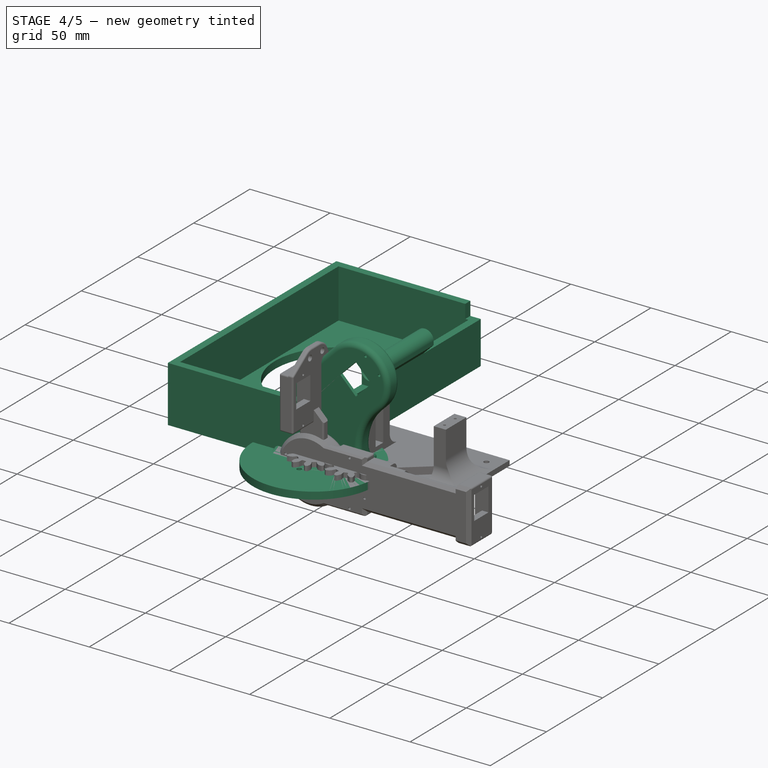
[diagram: stage 4 of 5 — iso view after this stage's code; geometry added in this stage tinted green]
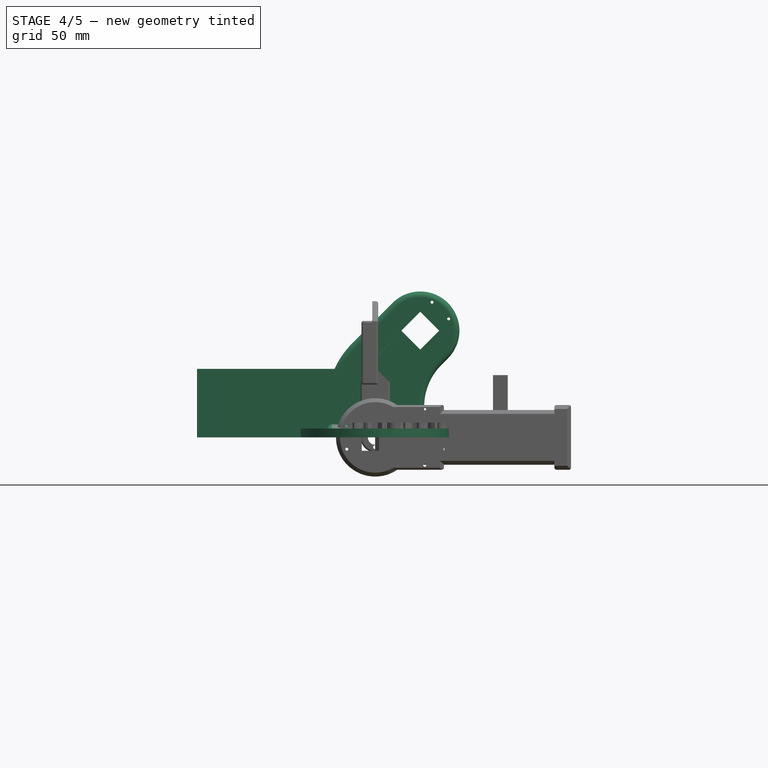
[diagram: stage 4 of 5 — front view after this stage's code; geometry added in this stage tinted green]
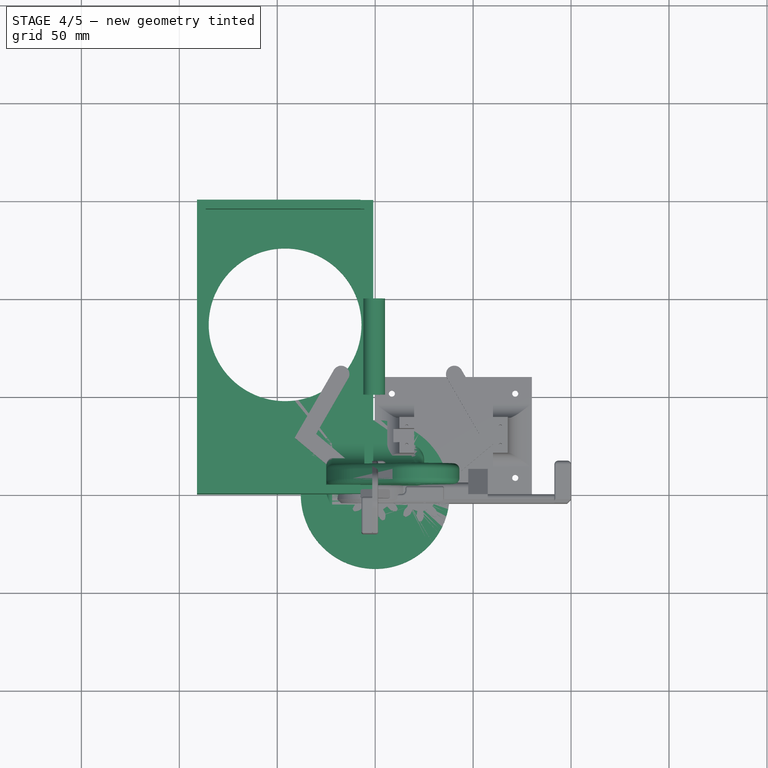
[diagram: stage 4 of 5 — top view after this stage's code; geometry added in this stage tinted green]
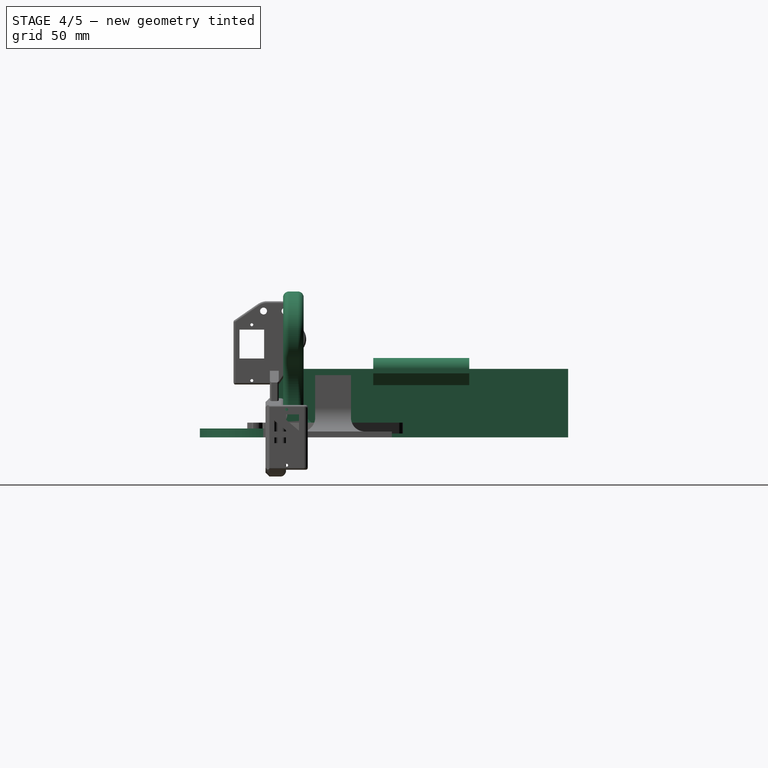
[diagram: stage 4 of 5 — right view after this stage's code; geometry added in this stage tinted green]
FEATURE [Sketcher::SketchObject] Sketch010
  FullyConstrained = true
  MapMode = 5
  Support = -> [XY_Plane002]
  sketch-geometry (4):
    g0: LineSegment StartX=-1 StartY=0 StartZ=0 EndX=-91 EndY=0 EndZ=0
    g1: LineSegment StartX=-91 StartY=0 StartZ=0 EndX=-91 EndY=150 EndZ=0
    g2: LineSegment StartX=-91 StartY=150 StartZ=0 EndX=-1 EndY=150 EndZ=0
    g3: LineSegment StartX=-1 StartY=150 StartZ=0 EndX=-1 EndY=0 EndZ=0
  constraints (12):
    c: Coincident(g0,g1)
    c: Coincident(g1,g2)
    c: Coincident(g2,g3)
    c: Coincident(g3,g0)
    c: Horizontal(g0)
    c: Horizontal(g2)
    c: Vertical(g1)
    c: Vertical(g3)
    c: PointOnObject(g0,g-1)
    c: Distance(g2) = 90
    c: Distance(g1) = 150
    c: Distance(g0,g-1) = 1
FEATURE [PartDesign::Pad] Pad004
  Direction = (0,0,1)
  Length = 35
  Length2 = 10
  Profile = -> Sketch010
  ReferenceAxis = -> Sketch010 [N_Axis]
  Type = 0
FEATURE [Sketcher::SketchObject] Sketch011
  FullyConstrained = true
  MapMode = 5
  Placement = pos=(0,0,35) rot=(0,0,1;0rad)
  Support = -> [Pad004]
  sketch-geometry (4):
    g0: LineSegment StartX=-5.5 StartY=4.5 StartZ=0 EndX=-86.5 EndY=4.5 EndZ=0
    g1: LineSegment StartX=-86.5 StartY=4.5 StartZ=0 EndX=-86.5 EndY=145.5 EndZ=0
    g2: LineSegment StartX=-86.5 StartY=145.5 StartZ=0 EndX=-5.5 EndY=145.5 EndZ=0
    g3: LineSegment StartX=-5.5 StartY=145.5 StartZ=0 EndX=-5.5 EndY=4.5 EndZ=0
  constraints (12):
    c: Coincident(g0,g1)
    c: Coincident(g1,g2)
    c: Coincident(g2,g3)
    c: Coincident(g3,g0)
    c: Horizontal(g0)
    c: Horizontal(g2)
    c: Vertical(g1)
    c: Vertical(g3)
    c: Distance(g2) = 81
    c: Distance(g1) = 141
    c: DistanceX(g0,g-1) = 5.5
    c: DistanceY(g-1,g0) = 4.5
FEATURE [PartDesign::Pocket] Pocket004
  BaseFeature = -> Pad004
  Direction = (0,0,-1)
  Length = 30.5
  Length2 = 5
  Profile = -> Sketch011
  ReferenceAxis = -> Sketch011 [N_Axis]
  Type = 0
FEATURE [Sketcher::SketchObject] Sketch012
  FullyConstrained = true
  MapMode = 5
  Placement = pos=(0,0,0) rot=(1,0,0;1.5708rad)
  Support = -> [XZ_Plane002]
  sketch-geometry (1):
    g0: Circle CenterX=-0.5 CenterY=35 CenterZ=0 NormalX=0 NormalY=0 NormalZ=1 AngleXU=0 Radius=5.5
  constraints (3):
    c: Radius(g0) = 5.5
    c: DistanceX(g0,g-1) = 0.5
    c: DistanceY(g-1,g0) = 35
FEATURE [PartDesign::Pad] Pad005
  BaseFeature = -> Pocket004
  Direction = (0,-1,-2e-16)
  Length = 150
  Length2 = 10
  Profile = -> Sketch012
  ReferenceAxis = -> Sketch012 [N_Axis]
  Reversed = true
  Type = 0
FEATURE [Sketcher::SketchObject] Sketch015
  FullyConstrained = true
  MapMode = 5
  Placement = pos=(0,0,0) rot=(0.57735,0.57735,0.57735;2.0944rad)
  Support = -> [YZ_Plane002]
  sketch-geometry (8):
    g0: LineSegment StartX=0 StartY=26.5 StartZ=0 EndX=50.5 EndY=26.5 EndZ=0
    g1: LineSegment StartX=50.5 StartY=26.5 StartZ=0 EndX=50.5 EndY=40.5 EndZ=0
    g2: LineSegment StartX=50.5 StartY=40.5 StartZ=0 EndX=0 EndY=40.5 EndZ=0
    g3: LineSegment StartX=0 StartY=40.5 StartZ=0 EndX=0 EndY=26.5 EndZ=0
    g4: LineSegment StartX=150 StartY=40.5 StartZ=0 EndX=99.5 EndY=40.5 EndZ=0
    g5: LineSegment StartX=99.5 StartY=40.5 StartZ=0 EndX=99.5 EndY=26.5 EndZ=0
    g6: LineSegment StartX=99.5 StartY=26.5 StartZ=0 EndX=150 EndY=26.5 EndZ=0
    g7: LineSegment StartX=150 StartY=26.5 StartZ=0 EndX=150 EndY=40.5 EndZ=0
  constraints (24):
    c: Coincident(g0,g1)
    c: Coincident(g1,g2)
    c: Coincident(g2,g3)
    c: Coincident(g3,g0)
    c: Horizontal(g0)
    c: Horizontal(g2)
    c: Vertical(g1)
    c: Vertical(g3)
    c: PointOnObject(g0,g-2)
    c: Coincident(g4,g5)
    c: Coincident(g5,g6)
    c: Coincident(g6,g7)
    c: Coincident(g7,g4)
    c: Horizontal(g4)
    c: Horizontal(g6)
    c: Vertical(g5)
    c: Vertical(g7)
    c: DistanceY(g1,g1) = 14
    c: DistanceY(g7,g7) = 14
    c: DistanceY(g-1,g0) = 26.5
    c: Horizontal(g0,g6)
    c: Distance(g2) = 50.5
    c: Distance(g4) = 50.5
    c: DistanceX(g-1,g6) = 150
FEATURE [PartDesign::Pocket] Pocket006
  BaseFeature = -> Pad005
  Direction = (-1,2e-16,-3e-16)
  Length = 15
  Length2 = 5
  Midplane = true
  Profile = -> Sketch015
  ReferenceAxis = -> Sketch015 [N_Axis]
  Type = 0
FEATURE [Sketcher::SketchObject] Sketch016
  FullyConstrained = true
  MapMode = 5
  Placement = pos=(1.11e-14,50.5,-1.11e-14) rot=(1,0,0;1.5708rad)
  Support = -> [Pocket006]
  sketch-geometry (4):
    g0: LineSegment StartX=-1 StartY=26.7 StartZ=0 EndX=5 EndY=32.7 EndZ=0
    g1: LineSegment StartX=5 StartY=32.7 StartZ=0 EndX=5 EndY=35 EndZ=0
    g2: LineSegment StartX=5 StartY=35 StartZ=0 EndX=-1 EndY=35 EndZ=0
    g3: LineSegment StartX=-1 StartY=35 StartZ=0 EndX=-1 EndY=26.7 EndZ=0
  constraints (12):
    c: Coincident(g0,g1)
    c: Coincident(g1,g2)
    c: Horizontal(g2)
    c: Coincident(g2,g3)
    c: Coincident(g3,g0)
    c: Vertical(g3)
    c: DistanceX(g0,g-1) = 1
    c: Angle(g-1,g0) = 0.785398
    c: Vertical(g1)
    c: DistanceY(g-1,g0) = 26.7
    c: Distance(g1) = 2.3
    c: Distance(g3) = 8.3
FEATURE [PartDesign::Pad] Pad007
  BaseFeature = -> Pocket006
  Direction = (-2e-16,-1,2e-16)
  Length = 49
  Length2 = 10
  Profile = -> Sketch016
  ReferenceAxis = -> Sketch016 [N_Axis]
  Reversed = true
  Type = 0
FEATURE [PartDesign::Plane] DatumPlane001
  AttachmentOffset = pos=(0.5,0,0) rot=(0,1,0;1.5708rad)
  Length = 196.413
  MapMode = 5
  Placement = pos=(-0.5,99.5,-2.19e-14) rot=(-0.57735,0.57735,0.57735;4.18879rad)
  ResizeMode = 0
  Support = -> [Pad007]
  Width = 86.9126
FEATURE [Sketcher::SketchObject] Sketch020
  FullyConstrained = true
  MapMode = 5
  Placement = pos=(-0.5,99.5,-2.19e-14) rot=(-0.57735,0.57735,0.57735;4.18879rad)
  Support = -> [DatumPlane001]
  sketch-geometry (6):
    g0: LineSegment StartX=-1 StartY=28.5 StartZ=0 EndX=5.5 EndY=35 EndZ=0
    g1: LineSegment StartX=5.5 StartY=35 StartZ=0 EndX=-1 EndY=35 EndZ=0
    g2: LineSegment StartX=-1 StartY=35 StartZ=0 EndX=-1 EndY=28.5 EndZ=0
    g3: LineSegment StartX=50 StartY=28.5 StartZ=0 EndX=43.5 EndY=35 EndZ=0
    g4: LineSegment StartX=43.5 StartY=35 StartZ=0 EndX=50 EndY=35 EndZ=0
    g5: LineSegment StartX=50 StartY=35 StartZ=0 EndX=50 EndY=28.5 EndZ=0
  constraints (18):
    c: Coincident(g0,g1)
    c: Horizontal(g1)
    c: Coincident(g1,g2)
    c: Coincident(g2,g0)
    c: Coincident(g3,g4)
    c: Horizontal(g4)
    c: Coincident(g4,g5)
    c: Coincident(g5,g3)
    c: Vertical(g5)
    c: Angle(g3,g-1) = 0.785398
    c: Angle(g-1,g0) = 0.785398
    c: DistanceY(g-1,g1) = 35
    c: DistanceY(g-1,g4) = 35
    c: DistanceX(g-1,g3) = 43.5
    c: DistanceY(g5,g5) = 6.5
    c: DistanceX(g-1,g0) = 5.5
    c: Vertical(g2)
    c: DistanceY(g2,g2) = 6.5
FEATURE [PartDesign::Groove] Groove
  Angle = 360
  Axis = (9e-16,1,-3e-16)
  Base = (-0.5,94,35)
  BaseFeature = -> Pad007
  Profile = -> Sketch020
  ReferenceAxis = -> Sketch020 [Edge2]
FEATURE [PartDesign::Body] Body001  label="Base-Support-Bottom-Body"
  Group = -> [Sketch008,Pad003,Sketch009,Pocket003,Sketch013,Pad006,Sketch014,Pocket005,Sketch017,Pad008,Sketch018,Pad009,DatumPlane,Sketch019,Revolution,Sketch021,Pad010,Chamfer001,Sketch022,Pocket007,Chamfer002,Chamfer003,Fillet001,Sketch023,Pocket008]
  Origin = -> Origin001
  Tip = -> Pocket008
FEATURE [Sketcher::SketchObject] Sketch024
  FullyConstrained = true
  MapMode = 5
  Placement = pos=(0,0,4.5) rot=(0,0,1;0rad)
  Support = -> [Groove]
  sketch-geometry (1):
    g0: Circle CenterX=-46 CenterY=86.65 CenterZ=0 NormalX=0 NormalY=0 NormalZ=1 AngleXU=0 Radius=39
  constraints (3):
    c: DistanceX(g0,g-1) = 46
    c: DistanceY(g-1,g0) = 86.65
    c: Radius(g0) = 39
FEATURE [PartDesign::Pocket] Pocket009
  BaseFeature = -> Groove
  Direction = (0,0,-1)
  Length = 5
  Length2 = 5
  Profile = -> Sketch024
  ReferenceAxis = -> Sketch024 [N_Axis]
  Type = 0
FEATURE [PartDesign::Body] Body002  label="Base-Support-Top-Body"
  Group = -> [Sketch010,Pad004,Sketch011,Pocket004,Sketch012,Pad005,Sketch015,Pocket006,Sketch016,Pad007,DatumPlane001,Sketch020,Groove,Sketch024,Pocket009]
  Origin = -> Origin002
  Tip = -> Pocket009
FEATURE [Sketcher::SketchObject] Sketch025
  FullyConstrained = true
  MapMode = 5
  Support = -> [XY_Plane003]
  sketch-geometry (1):
    g0: Circle CenterX=0 CenterY=0 CenterZ=0 NormalX=0 NormalY=0 NormalZ=1 AngleXU=0 Radius=38
  constraints (2):
    c: Coincident(g0,g-1)
    c: Radius(g0) = 38
FEATURE [PartDesign::Pad] Pad011
  Direction = (0,0,1)
  Length = 4.5
  Length2 = 10
  Profile = -> Sketch025
  ReferenceAxis = -> Sketch025 [N_Axis]
  Type = 0
FEATURE [PartDesign::Plane] DatumPlane002
  AttachmentOffset = pos=(0,4.5,0) rot=(1,0,0;1.5708rad)
  Length = 98.6945
  MapMode = 5
  Placement = pos=(0,4.5,4.5) rot=(1,0,0;1.5708rad)
  ResizeMode = 0
  Support = -> [Pad011]
  Width = 117.389
FEATURE [Sketcher::SketchObject] Sketch026
  FullyConstrained = true
  MapMode = 5
  Placement = pos=(0,4.5,4.5) rot=(1,0,0;1.5708rad)
  Support = -> [DatumPlane002]
  sketch-geometry (10):
    g0: LineSegment StartX=-25 StartY=0 StartZ=0 EndX=-25 EndY=11.17 EndZ=0
    g1: ArcOfCircle CenterX=21.1459 CenterY=11.17 CenterZ=0 NormalX=0 NormalY=0 NormalZ=1 AngleXU=0 Radius=46.1459 StartAngle=2.35619 EndAngle=3.14159
    g2: LineSegment StartX=-11.4842 StartY=43.8001 StartZ=0 EndX=8.85786 EndY=64.1421 EndZ=0
    g3: ArcOfCircle CenterX=23 CenterY=50 CenterZ=0 NormalX=0 NormalY=0 NormalZ=1 AngleXU=0 Radius=20 StartAngle=5.49779 EndAngle=8.63938
    g4: LineSegment StartX=37.1421 StartY=35.8579 StartZ=0 EndX=33.8712 EndY=32.5869 EndZ=0
    g5: ArcOfCircle CenterX=55.2881 CenterY=11.17 CenterZ=0 NormalX=0 NormalY=0 NormalZ=1 AngleXU=0 Radius=30.2881 StartAngle=2.35619 EndAngle=3.14159
    g6: LineSegment StartX=25 StartY=11.17 StartZ=0 EndX=25 EndY=0 EndZ=0
    g7: LineSegment StartX=25 StartY=0 StartZ=0 EndX=-25 EndY=0 EndZ=0
    g8: LineSegment StartX=8.85786 StartY=64.1421 StartZ=0 EndX=23 EndY=50 EndZ=0
    g9: LineSegment StartX=23 StartY=50 StartZ=0 EndX=37.1421 EndY=35.8579 EndZ=0
  constraints (25):
    c: Vertical(g0)
    c: Tangent(g0,g1) = 1.5708
    c: Tangent(g2,g3) = 1.5708
    c: Tangent(g4,g5) = -1.5708
    c: Vertical(g6)
    c: Coincident(g6,g7)
    c: Coincident(g7,g0)
    c: Horizontal(g7)
    c: Tangent(g1,g2) = 1.5708
    c: Tangent(g3,g4) = 1.5708
    c: Tangent(g5,g6) = -1.5708
    c: Coincident(g8,g2)
    c: Coincident(g8,g3)
    c: Coincident(g9,g3)
    c: Coincident(g9,g3)
    c: Parallel(g8,g9)
    c: Radius(g3) = 20
    c: DistanceX(g0,g6) = 50
    c: Horizontal(g0,g5)
    c: DistanceX(g0,g-1) = 25
    c: DistanceY(g0,g0) = 11.17
    c: Angle(g-1,g2) = 0.785398
    c: PointOnObject(g0,g-1)
    c: DistanceY(g-1,g3) = 50
    c: DistanceX(g-1,g3) = 23
FEATURE [PartDesign::Pad] Pad012
  BaseFeature = -> Pad011
  Direction = (0,-1,2e-16)
  Length = 10.5
  Length2 = 10
  Profile = -> Sketch026
  ReferenceAxis = -> Sketch026 [N_Axis]
  Reversed = true
  Type = 0
FEATURE [Sketcher::SketchObject] Sketch027
  FullyConstrained = true
  MapMode = 5
  Placement = pos=(0,15,-3.3e-15) rot=(0,0.707107,0.707107;3.14159rad)
  Support = -> [Pad012]
  sketch-geometry (6):
    g0: LineSegment StartX=-8.36289 StartY=25.7208 StartZ=0 EndX=-37.4957 EndY=54.8536 EndZ=0
    g1: LineSegment StartX=-37.4957 StartY=54.8536 StartZ=0 EndX=-23.3536 EndY=68.9957 EndZ=0
    g2: LineSegment StartX=-23.3536 StartY=68.9957 StartZ=0 EndX=5.77925 EndY=39.8629 EndZ=0
    g3: LineSegment StartX=5.77925 StartY=39.8629 StartZ=0 EndX=-8.36289 EndY=25.7208 EndZ=0
    g4: LineSegment StartX=-15.9289 StartY=61.5711 StartZ=0 EndX=-30.0711 EndY=47.4289 EndZ=0
    g5: LineSegment StartX=-30.4246 StartY=61.9246 StartZ=0 EndX=-23 EndY=54.5 EndZ=0
  constraints (20):
    c: Coincident(g0,g1)
    c: Coincident(g1,g2)
    c: Coincident(g2,g3)
    c: Coincident(g3,g0)
    c: Parallel(g1,g3)
    c: Parallel(g0,g2)
    c: Perpendicular(g1,g0)
    c: Angle(g0,g-1) = 0.785398
    c: Distance(g0) = 41.2
    c: Distance(g1) = 20
    c: PointOnObject(g4,g2)
    c: PointOnObject(g4,g0)
    c: Parallel(g4,g1)
    c: PointOnObject(g5,g1)
    c: PointOnObject(g5,g4)
    c: Perpendicular(g4,g5)
    c: Distance(g5) = 10.5
    c: Distance(g5,g0) = 10
    c: DistanceY(g-1,g5) = 54.5
    c: DistanceX(g5,g-1) = 23
FEATURE [PartDesign::Pocket] Pocket010
  BaseFeature = -> Pad012
  Direction = (0,-1,2e-16)
  Length = 8.5
  Length2 = 5
  Profile = -> Sketch027
  ReferenceAxis = -> Sketch027 [N_Axis]
  Type = 0
FEATURE [Sketcher::SketchObject] Sketch028
  FullyConstrained = true
  MapMode = 5
  Placement = pos=(0,15,-3.3e-15) rot=(0,0.707107,0.707107;3.14159rad)
  Support = -> [Pocket010]
  sketch-geometry (4):
    g0: Circle CenterX=-37.5 CenterY=60.51 CenterZ=0 NormalX=0 NormalY=0 NormalZ=1 AngleXU=0 Radius=0.75
    g1: Circle CenterX=-29.01 CenterY=69 CenterZ=0 NormalX=0 NormalY=0 NormalZ=1 AngleXU=0 Radius=0.75
    g2: Circle CenterX=5.78 CenterY=34.21 CenterZ=0 NormalX=0 NormalY=0 NormalZ=1 AngleXU=0 Radius=0.75
    g3: Circle CenterX=-2.71 CenterY=25.72 CenterZ=0 NormalX=0 NormalY=0 NormalZ=1 AngleXU=0 Radius=0.75
  constraints (12):
    c: Equal(g0,g1)
    c: Equal(g1,g2)
    c: Equal(g2,g3)
    c: Diameter(g2) = 1.5
    c: DistanceX(g0,g-1) = 37.5
    c: DistanceX(g1,g-1) = 29.01
    c: DistanceX(g3,g-1) = 2.71
    c: DistanceX(g-1,g2) = 5.78
    c: DistanceY(g-1,g0) = 60.51
    c: DistanceY(g-1,g1) = 69
    c: DistanceY(g-1,g3) = 25.72
    c: DistanceY(g-1,g2) = 34.21
FEATURE [PartDesign::Pocket] Pocket011
  BaseFeature = -> Pocket010
  Direction = (0,-1,2e-16)
  Length = 11.5
  Length2 = 5
  Profile = -> Sketch028
  ReferenceAxis = -> Sketch028 [N_Axis]
  Type = 0
FEATURE [Sketcher::SketchObject] Sketch037
  FullyConstrained = true
  MapMode = 5
  Placement = pos=(0,0,0) rot=(1,0,0;3.14159rad)
  Support = -> [Pocket011]
  sketch-geometry (4):
    g0: Circle CenterX=0 CenterY=13 CenterZ=0 NormalX=0 NormalY=0 NormalZ=1 AngleXU=0 Radius=1.45
    g1: Circle CenterX=13 CenterY=0 CenterZ=0 NormalX=0 NormalY=0 NormalZ=1 AngleXU=0 Radius=1.45
    g2: Circle CenterX=-13 CenterY=0 CenterZ=0 NormalX=0 NormalY=0 NormalZ=1 AngleXU=0 Radius=1.45
    g3: Circle CenterX=0 CenterY=-13 CenterZ=0 NormalX=0 NormalY=0 NormalZ=1 AngleXU=0 Radius=0.75
  constraints (12):
    c: PointOnObject(g0,g-2)
    c: PointOnObject(g1,g-1)
    c: PointOnObject(g2,g-1)
    c: Equal(g0,g2)
    c: Equal(g1,g2)
    c: DistanceY(g-1,g0) = 13
    c: DistanceX(g2,g-1) = 13
    c: DistanceX(g-1,g1) = 13
    c: Diameter(g0) = 2.9
    c: PointOnObject(g3,g-2)
    c: DistanceY(g3,g-1) = 13
    c: Diameter(g3) = 1.5
FEATURE [Sketcher::SketchObject] Sketch038
  FullyConstrained = true
  MapMode = 5
  Placement = pos=(0,6.5,-2e-15) rot=(0,0.707107,0.707107;3.14159rad)
  sketch-geometry (7):
    g0: LineSegment StartX=-23 StartY=64.1874 StartZ=0 EndX=-32.6874 EndY=54.5 EndZ=0
    g1: LineSegment StartX=-32.6874 StartY=54.5 StartZ=0 EndX=-23 EndY=44.8126 EndZ=0
    g2: LineSegment StartX=-23 StartY=44.8126 StartZ=0 EndX=-13.3126 EndY=54.5 EndZ=0
    g3: LineSegment StartX=-13.3126 StartY=54.5 StartZ=0 EndX=-23 EndY=64.1874 EndZ=0
    g4: LineSegment StartX=-27.8437 StartY=59.3437 StartZ=0 EndX=-18.1563 EndY=49.6563 EndZ=0
    g5: LineSegment StartX=-18.1563 StartY=59.3437 StartZ=0 EndX=-23 EndY=54.5 EndZ=0
    g6: LineSegment StartX=-23 StartY=54.5 StartZ=0 EndX=-27.8437 EndY=49.6563 EndZ=0
  constraints (23):
    c: Coincident(g0,g1)
    c: Coincident(g1,g2)
    c: Coincident(g2,g3)
    c: Coincident(g3,g0)
    c: Parallel(g2,g0)
    c: Parallel(g3,g1)
    c: Perpendicular(g2,g1)
    c: Equal(g1,g2)
    c: Angle(g-1,g2) = 0.785398
    c: PointOnObject(g4,g0)
    c: PointOnObject(g4,g2)
    c: PointOnObject(g5,g3)
    c: PointOnObject(g5,g4)
    c: Coincident(g5,g6)
    c: PointOnObject(g6,g1)
    c: Parallel(g5,g6)
    c: Perpendicular(g5,g4)
    c: Distance(g0,g4) = 6.85
    c: Distance(g0,g6) = 6.85
    c: Distance(g2) = 13.7
    c: Parallel(g5,g0)
    c: DistanceY(g-1,g5) = 54.5
    c: DistanceX(g5,g-1) = 23
FEATURE [PartDesign::Pocket] Pocket017
  BaseFeature = -> Pocket011
  Direction = (0,-1,2e-16)
  Length = 2
  Length2 = 5
  Profile = -> Sketch038
  ReferenceAxis = -> Sketch038 [N_Axis]
  Type = 0
FEATURE [PartDesign::Fillet] Fillet002
  Base = -> Pocket017 [Edge6,Edge4]
  BaseFeature = -> Pocket017
  Radius = 11
  SupportTransform = false
  UseAllEdges = false
FEATURE [PartDesign::Fillet] Fillet003
  Base = -> Fillet002 [Edge41]
  BaseFeature = -> Fillet002
  Radius = 3
  SupportTransform = false
  UseAllEdges = false
FEATURE [PartDesign::Fillet] Fillet004
  Base = -> Fillet003 [Edge40]
  BaseFeature = -> Fillet003
  Radius = 3
  SupportTransform = false
  UseAllEdges = false
FEATURE [PartDesign::Pocket] Pocket018
  BaseFeature = -> Fillet004
  Direction = (0,0,1)
  Length = 16
  Length2 = 5
  Midplane = true
  Profile = -> Sketch037
  ReferenceAxis = -> Sketch037 [N_Axis]
  Type = 0
FEATURE [PartDesign::Fillet] Fillet006
  Base = -> Fillet005 [Edge71,Edge74,Edge76]
  BaseFeature = -> Fillet005
  Placement = pos=(0,0,0) rot=(1,0,0;1.5708rad)
  Radius = 2
  SupportTransform = false
  UseAllEdges = false
FEATURE [PartDesign::Fillet] Fillet007
  Base = -> Fillet006 [Edge122,Edge121,Edge119]
  BaseFeature = -> Fillet006
  Placement = pos=(0,0,0) rot=(1,0,0;1.5708rad)
  Radius = 2
  SupportTransform = false
  UseAllEdges = false
FEATURE [PartDesign::Fillet] Fillet008
  Base = -> Fillet007 [Edge81,Edge85]
  BaseFeature = -> Fillet007
  Placement = pos=(0,0,0) rot=(1,0,0;1.5708rad)
  Radius = 2
  SupportTransform = false
  UseAllEdges = false
FEATURE [PartDesign::Fillet] Fillet009
  Base = -> Fillet008 [Edge34,Edge99,Edge98,Edge94]
  BaseFeature = -> Fillet008
  Placement = pos=(0,0,0) rot=(1,0,0;1.5708rad)
  Radius = 2
  SupportTransform = false
  UseAllEdges = false
FEATURE [PartDesign::Fillet] Fillet012
  Base = -> Fillet009 [Edge17,Edge28,Edge4,Edge1]
  BaseFeature = -> Fillet009
  Placement = pos=(0,0,0) rot=(1,0,0;1.5708rad)
  Radius = 1
  SupportTransform = false
  UseAllEdges = false
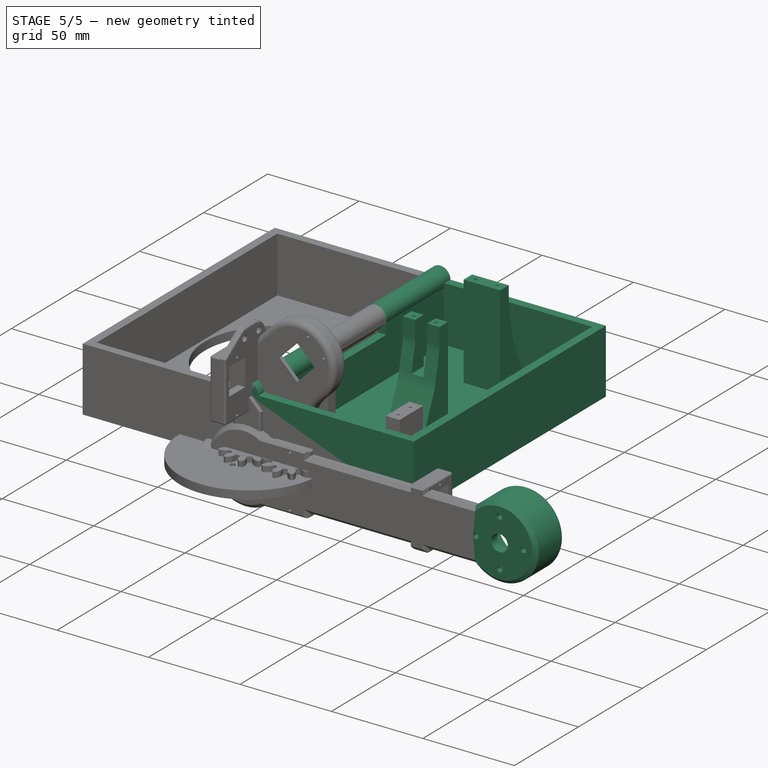
[diagram: stage 5 of 5 — iso view after this stage's code; geometry added in this stage tinted green]
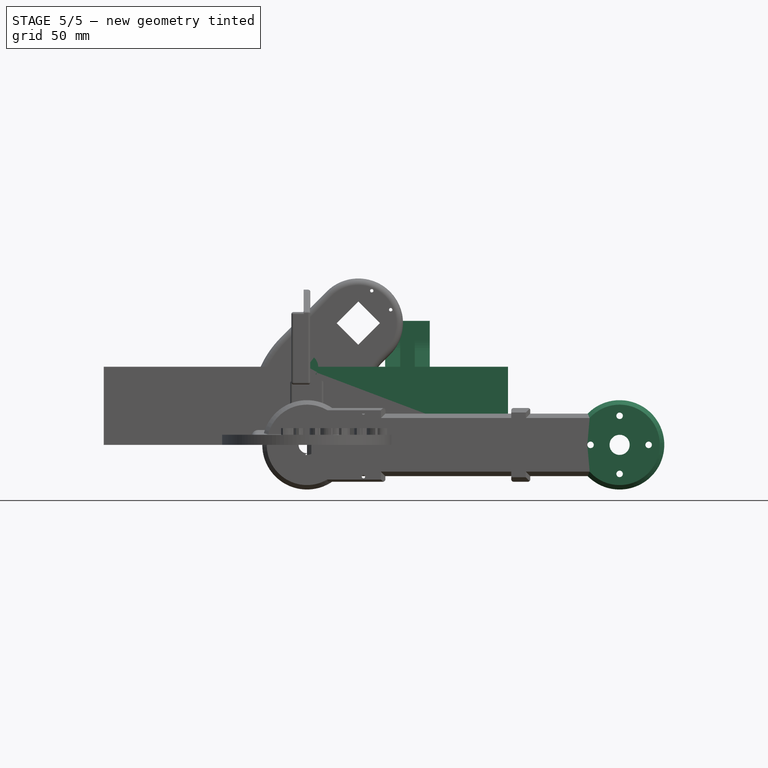
[diagram: stage 5 of 5 — front view after this stage's code; geometry added in this stage tinted green]
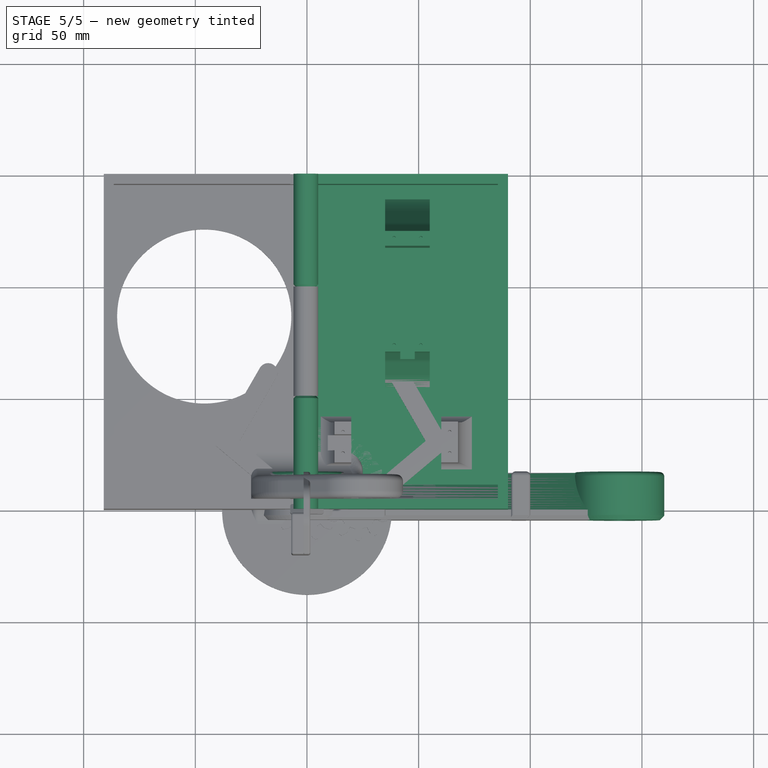
[diagram: stage 5 of 5 — top view after this stage's code; geometry added in this stage tinted green]
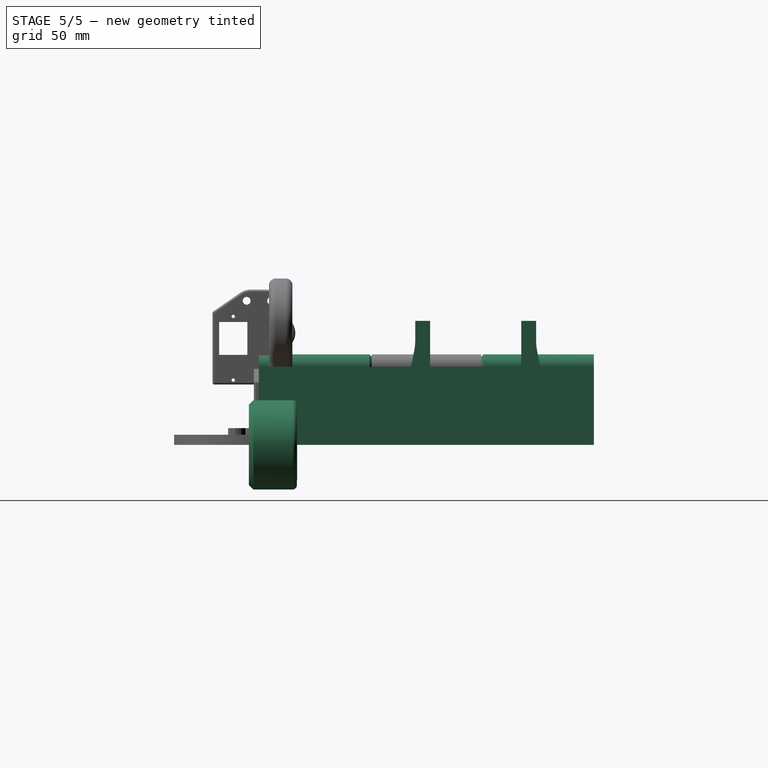
[diagram: stage 5 of 5 — right view after this stage's code; geometry added in this stage tinted green]
FEATURE [Sketcher::SketchObject] Sketch
  FullyConstrained = true
  MapMode = 5
  Placement = pos=(0,0,0) rot=(1,0,0;1.5708rad)
  Support = -> [XZ_Plane]
  sketch-geometry (4):
    g0: ArcOfCircle CenterX=0 CenterY=0 CenterZ=0 NormalX=0 NormalY=0 NormalZ=1 AngleXU=0 Radius=20 StartAngle=0.775397 EndAngle=5.50779
    g1: ArcOfCircle CenterX=140 CenterY=0 CenterZ=0 NormalX=0 NormalY=0 NormalZ=1 AngleXU=0 Radius=20 StartAngle=3.91699 EndAngle=8.64938
    g2: LineSegment StartX=14.2829 StartY=14 StartZ=0 EndX=125.717 EndY=14 EndZ=0
    g3: LineSegment StartX=14.2829 StartY=-14 StartZ=0 EndX=125.717 EndY=-14 EndZ=0
  constraints (13):
    c: Coincident(g0,g-1)
    c: Radius(g0) = 20
    c: PointOnObject(g1,g-1)
    c: Radius(g1) = 20
    c: DistanceX(g0,g1) = 140
    c: Horizontal(g2)
    c: Horizontal(g3)
    c: Equal(g2,g3)
    c: DistanceY(g0,g2) = 14
    c: Coincident(g1,g2)
    c: Coincident(g1,g3)
    c: Coincident(g0,g3)
    c: Coincident(g0,g2)
FEATURE [PartDesign::Pad] Pad
  Direction = (0,-1,-2e-16)
  Length = 4.5
  Length2 = 10
  Placement = pos=(0,0,0) rot=(1,0,0;1.5708rad)
  Profile = -> Sketch
  ReferenceAxis = -> Sketch [N_Axis]
  Type = 0
FEATURE [Sketcher::SketchObject] Sketch001
  FullyConstrained = true
  MapMode = 5
  Placement = pos=(0,0,0) rot=(0.57735,0.57735,0.57735;2.0944rad)
  Support = -> [YZ_Plane]
  sketch-geometry (6):
    g0: LineSegment StartX=0 StartY=8.637 StartZ=0 EndX=10.2932 EndY=0 EndZ=0
    g1: LineSegment StartX=10.2932 StartY=0 StartZ=0 EndX=0 EndY=-8.637 EndZ=0
    g2: LineSegment StartX=0 StartY=-8.637 StartZ=0 EndX=0 EndY=-14 EndZ=0
    g3: LineSegment StartX=0 StartY=-14 StartZ=0 EndX=16.6846 EndY=-1.8e-15 EndZ=0
    g4: LineSegment StartX=16.6846 StartY=-1.8e-15 StartZ=0 EndX=0 EndY=14 EndZ=0
    g5: LineSegment StartX=0 StartY=14 StartZ=0 EndX=0 EndY=8.637 EndZ=0
  constraints (18):
    c: PointOnObject(g0,g-2)
    c: PointOnObject(g0,g-1)
    c: Coincident(g0,g1)
    c: Coincident(g1,g2)
    c: Coincident(g2,g3)
    c: PointOnObject(g3,g-1)
    c: Coincident(g3,g4)
    c: PointOnObject(g4,g-2)
    c: Parallel(g0,g4)
    c: Parallel(g1,g3)
    c: PointOnObject(g2,g-2)
    c: PointOnObject(g1,g-2)
    c: DistanceY(g2,g4) = 28
    c: DistanceY(g-1,g4) = 14
    c: Angle(g-2,g0) = 0.872665
    c: DistanceY(g0,g4) = 5.363
    c: Coincident(g5,g4)
    c: Coincident(g5,g0)
FEATURE [PartDesign::Pad] Pad001
  BaseFeature = -> Pad
  Direction = (1,-2e-16,3e-16)
  Length = 140
  Length2 = 10
  Placement = pos=(0,0,0) rot=(1,0,0;1.5708rad)
  Profile = -> Sketch001
  ReferenceAxis = -> Sketch001 [N_Axis]
  Type = 0
FEATURE [Sketcher::SketchObject] Sketch002
  FullyConstrained = true
  MapMode = 5
  Placement = pos=(0,0,0) rot=(-1,0,0;1.5708rad)
  Support = -> [Pad001]
  sketch-geometry (2):
    g0: Circle CenterX=0 CenterY=0 CenterZ=0 NormalX=0 NormalY=0 NormalZ=1 AngleXU=0 Radius=20
    g1: Circle CenterX=140 CenterY=0 CenterZ=0 NormalX=0 NormalY=0 NormalZ=1 AngleXU=0 Radius=20
  constraints (5):
    c: Coincident(g0,g-1)
    c: PointOnObject(g1,g-1)
    c: Radius(g0) = 20
    c: Radius(g1) = 20
    c: DistanceX(g0,g1) = 140
FEATURE [PartDesign::Pad] Pad002
  BaseFeature = -> Pad001
  Direction = (0,1,2e-16)
  Length = 17
  Length2 = 10
  Placement = pos=(0,0,0) rot=(1,0,0;1.5708rad)
  Profile = -> Sketch002
  ReferenceAxis = -> Sketch002 [N_Axis]
  Type = 0
FEATURE [Sketcher::SketchObject] Sketch003
  FullyConstrained = true
  MapMode = 5
  Placement = pos=(0,17,3.7e-15) rot=(-1,0,0;1.5708rad)
  Support = -> [Pad002]
  sketch-geometry (2):
    g0: Circle CenterX=0 CenterY=0 CenterZ=0 NormalX=0 NormalY=0 NormalZ=1 AngleXU=0 Radius=15.5
    g1: Circle CenterX=140 CenterY=0 CenterZ=0 NormalX=0 NormalY=0 NormalZ=1 AngleXU=0 Radius=15.5
  constraints (5):
    c: Coincident(g0,g-1)
    c: PointOnObject(g1,g-1)
    c: Radius(g0) = 15.5
    c: Radius(g1) = 15.5
    c: DistanceX(g0,g1) = 140
FEATURE [PartDesign::Pocket] Pocket
  BaseFeature = -> Pad002
  Direction = (0,-1,-2e-16)
  Length = 17
  Length2 = 5
  Placement = pos=(0,0,0) rot=(1,0,0;1.5708rad)
  Profile = -> Sketch003
  ReferenceAxis = -> Sketch003 [N_Axis]
  Type = 0
FEATURE [Sketcher::SketchObject] Sketch004
  FullyConstrained = true
  MapMode = 5
  Placement = pos=(0,0,0) rot=(0.57735,0.57735,0.57735;2.0944rad)
  Support = -> [YZ_Plane]
  sketch-geometry (3):
    g0: LineSegment StartX=0 StartY=8.635 StartZ=0 EndX=0 EndY=-8.635 EndZ=0
    g1: LineSegment StartX=0 StartY=-8.635 StartZ=0 EndX=10.2908 EndY=0 EndZ=0
    g2: LineSegment StartX=10.2908 StartY=0 StartZ=0 EndX=0 EndY=8.635 EndZ=0
  constraints (9):
    c: PointOnObject(g0,g-2)
    c: PointOnObject(g0,g-2)
    c: Coincident(g0,g1)
    c: PointOnObject(g1,g-1)
    c: Coincident(g1,g2)
    c: Coincident(g2,g0)
    c: DistanceY(g0,g0) = 17.27
    c: Equal(g2,g1)
    c: Angle(g0,g2) = 0.872665
FEATURE [PartDesign::Pocket] Pocket001
  BaseFeature = -> Pocket
  Direction = (-1,2e-16,-3e-16)
  Length = 140
  Length2 = 5
  Placement = pos=(0,0,0) rot=(1,0,0;1.5708rad)
  Profile = -> Sketch004
  ReferenceAxis = -> Sketch004 [N_Axis]
  Reversed = true
  Type = 0
FEATURE [PartDesign::Fillet] Fillet
  Base = -> Pocket001 [Face12,Face9]
  BaseFeature = -> Pocket001
  Placement = pos=(0,0,0) rot=(1,0,0;1.5708rad)
  Radius = 2
  SupportTransform = false
  UseAllEdges = false
FEATURE [PartDesign::Chamfer] Chamfer
  Angle = 45
  Base = -> Fillet [Face13]
  BaseFeature = -> Fillet
  ChamferType = 0
  FlipDirection = false
  Placement = pos=(0,0,0) rot=(1,0,0;1.5708rad)
  Size = 2
  Size2 = 1
  SupportTransform = false
  UseAllEdges = false
FEATURE [Sketcher::SketchObject] Sketch005
  FullyConstrained = true
  MapMode = 5
  Placement = pos=(0,-3.6e-15,0) rot=(-1,0,0;1.5708rad)
  Support = -> [Chamfer]
  sketch-geometry (10):
    g0: Circle CenterX=0 CenterY=0 CenterZ=0 NormalX=0 NormalY=0 NormalZ=1 AngleXU=0 Radius=4.5
    g1: Circle CenterX=13 CenterY=0 CenterZ=0 NormalX=0 NormalY=0 NormalZ=1 AngleXU=0 Radius=1.45
    g2: Circle CenterX=-13 CenterY=0 CenterZ=0 NormalX=0 NormalY=0 NormalZ=1 AngleXU=0 Radius=1.45
    g3: Circle CenterX=140 CenterY=0 CenterZ=0 NormalX=0 NormalY=0 NormalZ=1 AngleXU=0 Radius=4.5
    g4: Circle CenterX=153 CenterY=0 CenterZ=0 NormalX=0 NormalY=0 NormalZ=1 AngleXU=0 Radius=1.45
    g5: Circle CenterX=127 CenterY=0 CenterZ=0 NormalX=0 NormalY=0 NormalZ=1 AngleXU=0 Radius=1.45
    g6: Circle CenterX=0 CenterY=13 CenterZ=0 NormalX=0 NormalY=0 NormalZ=1 AngleXU=0 Radius=1.45
    g7: Circle CenterX=0 CenterY=-13 CenterZ=0 NormalX=0 NormalY=0 NormalZ=1 AngleXU=0 Radius=1.45
    g8: Circle CenterX=140 CenterY=13 CenterZ=0 NormalX=0 NormalY=0 NormalZ=1 AngleXU=0 Radius=1.45
    g9: Circle CenterX=140 CenterY=-13 CenterZ=0 NormalX=0 NormalY=0 NormalZ=1 AngleXU=0 Radius=1.45
  constraints (29):
    c: Coincident(g0,g-1)
    c: PointOnObject(g1,g-1)
    c: PointOnObject(g2,g-1)
    c: PointOnObject(g3,g-1)
    c: PointOnObject(g4,g-1)
    c: PointOnObject(g5,g-1)
    c: Equal(g0,g3)
    c: Equal(g2,g1)
    c: Equal(g1,g5)
    c: Equal(g5,g4)
    c: DistanceX(g0,g3) = 140
    c: DistanceX(g2,g0) = 13
    c: DistanceX(g0,g1) = 13
    c: DistanceX(g5,g3) = 13
    c: DistanceX(g3,g4) = 13
    c: Diameter(g2) = 2.9
    c: Diameter(g0) = 9
    c: PointOnObject(g6,g-2)
    c: PointOnObject(g7,g-2)
    c: Equal(g2,g6)
    c: Equal(g6,g7)
    c: Equal(g8,g5)
    c: Equal(g8,g9)
    c: Vertical(g8,g3)
    c: Vertical(g9,g3)
    c: DistanceY(g0,g6) = 13
    c: DistanceY(g7,g0) = 13
    c: Horizontal(g6,g8)
    c: Horizontal(g9,g7)
FEATURE [PartDesign::Pocket] Pocket002
  BaseFeature = -> Chamfer
  Direction = (0,-1,-2e-16)
  Length = 5
  Length2 = 5
  Placement = pos=(0,0,0) rot=(1,0,0;1.5708rad)
  Profile = -> Sketch005
  ReferenceAxis = -> Sketch005 [N_Axis]
  Type = 0
FEATURE [PartDesign::Body] Body  label="Mid-Arm-Body"
  Group = -> [Sketch,Pad,Sketch001,Pad001,Sketch002,Pad002,Sketch003,Pocket,Sketch004,Pocket001,Fillet,Chamfer,Sketch005,Pocket002]
  Origin = -> Origin
  Tip = -> Pocket002
FEATURE [Sketcher::SketchObject] Sketch008
  FullyConstrained = true
  MapMode = 5
  Support = -> [XY_Plane001]
  sketch-geometry (4):
    g0: LineSegment StartX=0 StartY=0 StartZ=0 EndX=90 EndY=0 EndZ=0
    g1: LineSegment StartX=90 StartY=0 StartZ=0 EndX=90 EndY=150 EndZ=0
    g2: LineSegment StartX=90 StartY=150 StartZ=0 EndX=0 EndY=150 EndZ=0
    g3: LineSegment StartX=0 StartY=150 StartZ=0 EndX=0 EndY=0 EndZ=0
  constraints (11):
    c: Coincident(g0,g1)
    c: Coincident(g1,g2)
    c: Coincident(g2,g3)
    c: Coincident(g3,g0)
    c: Horizontal(g0)
    c: Horizontal(g2)
    c: Vertical(g1)
    c: Vertical(g3)
    c: Coincident(g0,g-1)
    c: DistanceX(g2,g2) = 90
    c: DistanceY(g3,g3) = 150
FEATURE [PartDesign::Pad] Pad003
  Direction = (0,0,1)
  Length = 35
  Length2 = 10
  Profile = -> Sketch008
  ReferenceAxis = -> Sketch008 [N_Axis]
  Type = 0
FEATURE [Sketcher::SketchObject] Sketch009
  FullyConstrained = true
  MapMode = 5
  Placement = pos=(0,0,35) rot=(0,0,1;0rad)
  Support = -> [Pad003]
  sketch-geometry (4):
    g0: LineSegment StartX=4.5 StartY=4.5 StartZ=0 EndX=85.5 EndY=4.5 EndZ=0
    g1: LineSegment StartX=85.5 StartY=4.5 StartZ=0 EndX=85.5 EndY=145.5 EndZ=0
    g2: LineSegment StartX=85.5 StartY=145.5 StartZ=0 EndX=4.5 EndY=145.5 EndZ=0
    g3: LineSegment StartX=4.5 StartY=145.5 StartZ=0 EndX=4.5 EndY=4.5 EndZ=0
  constraints (12):
    c: Coincident(g0,g1)
    c: Coincident(g1,g2)
    c: Coincident(g2,g3)
    c: Coincident(g3,g0)
    c: Horizontal(g0)
    c: Horizontal(g2)
    c: Vertical(g1)
    c: Vertical(g3)
    c: DistanceY(g1,g1) = 141
    c: DistanceX(g2,g2) = 81
    c: DistanceX(g-1,g0) = 4.5
    c: DistanceY(g-1,g0) = 4.5
FEATURE [PartDesign::Pocket] Pocket003
  BaseFeature = -> Pad003
  Direction = (0,0,-1)
  Length = 30.5
  Length2 = 5
  Profile = -> Sketch009
  ReferenceAxis = -> Sketch009 [N_Axis]
  Type = 0
FEATURE [Sketcher::SketchObject] Sketch013
  FullyConstrained = true
  MapMode = 5
  Placement = pos=(0,0,0) rot=(1,0,0;1.5708rad)
  Support = -> [XZ_Plane001]
  sketch-geometry (1):
    g0: Circle CenterX=-0.5 CenterY=35 CenterZ=0 NormalX=0 NormalY=0 NormalZ=1 AngleXU=0 Radius=5.5
  constraints (3):
    c: Radius(g0) = 5.5
    c: DistanceX(g0,g-1) = 0.5
    c: DistanceY(g-1,g0) = 35
FEATURE [PartDesign::Pad] Pad006
  BaseFeature = -> Pocket003
  Direction = (0,-1,-2e-16)
  Length = 150
  Length2 = 10
  Profile = -> Sketch013
  ReferenceAxis = -> Sketch013 [N_Axis]
  Reversed = true
  Type = 0
FEATURE [Sketcher::SketchObject] Sketch014
  FullyConstrained = true
  MapMode = 5
  Placement = pos=(0,0,0) rot=(0.57735,0.57735,0.57735;2.0944rad)
  Support = -> [YZ_Plane001]
  sketch-geometry (4):
    g0: LineSegment StartX=49.5 StartY=40.5 StartZ=0 EndX=100.5 EndY=40.5 EndZ=0
    g1: LineSegment StartX=100.5 StartY=40.5 StartZ=0 EndX=100.5 EndY=26.5 EndZ=0
    g2: LineSegment StartX=100.5 StartY=26.5 StartZ=0 EndX=49.5 EndY=26.5 EndZ=0
    g3: LineSegment StartX=49.5 StartY=26.5 StartZ=0 EndX=49.5 EndY=40.5 EndZ=0
  constraints (12):
    c: Coincident(g0,g1)
    c: Coincident(g1,g2)
    c: Coincident(g2,g3)
    c: Coincident(g3,g0)
    c: Horizontal(g0)
    c: Horizontal(g2)
    c: Vertical(g1)
    c: Vertical(g3)
    c: DistanceX(g0,g0) = 51
    c: DistanceX(g-1,g2) = 49.5
    c: DistanceY(g1,g1) = 14
    c: DistanceY(g-1,g2) = 26.5
FEATURE [PartDesign::Pocket] Pocket005
  BaseFeature = -> Pad006
  Direction = (-1,2e-16,-3e-16)
  Length = 12
  Length2 = 5
  Midplane = true
  Profile = -> Sketch014
  ReferenceAxis = -> Sketch014 [N_Axis]
  Type = 0
FEATURE [Sketcher::SketchObject] Sketch017
  FullyConstrained = true
  MapMode = 5
  Placement = pos=(0,-1e-16,0) rot=(1,0,0;1.5708rad)
  Support = -> [Pocket005]
  sketch-geometry (4):
    g0: LineSegment StartX=0 StartY=26.7 StartZ=0 EndX=-6 EndY=32.7 EndZ=0
    g1: LineSegment StartX=-6 StartY=32.7 StartZ=0 EndX=-6 EndY=35 EndZ=0
    g2: LineSegment StartX=-6 StartY=35 StartZ=0 EndX=0 EndY=35 EndZ=0
    g3: LineSegment StartX=0 StartY=35 StartZ=0 EndX=0 EndY=26.7 EndZ=0
  constraints (12):
    c: Coincident(g0,g1)
    c: Vertical(g1)
    c: Coincident(g1,g2)
    c: Horizontal(g2)
    c: Coincident(g2,g3)
    c: Coincident(g3,g0)
    c: Vertical(g3)
    c: Angle(g0,g-1) = 0.785398
    c: Distance(g3) = 8.3
    c: DistanceY(g-1,g0) = 26.7
    c: PointOnObject(g0,g-2)
    c: DistanceY(g1,g1) = 2.3
FEATURE [PartDesign::Pad] Pad008
  BaseFeature = -> Pocket005
  Direction = (0,-1,-2e-16)
  Length = 49.5
  Length2 = 10
  Profile = -> Sketch017
  ReferenceAxis = -> Sketch017 [N_Axis]
  Reversed = true
  Type = 0
FEATURE [Sketcher::SketchObject] Sketch018
  FullyConstrained = true
  MapMode = 5
  Placement = pos=(2.23e-14,100.5,-2.23e-14) rot=(1,0,0;1.5708rad)
  Support = -> [Pad008]
  sketch-geometry (4):
    g0: LineSegment StartX=0 StartY=26.7 StartZ=0 EndX=0 EndY=35 EndZ=0
    g1: LineSegment StartX=0 StartY=35 StartZ=0 EndX=-6 EndY=35 EndZ=0
    g2: LineSegment StartX=-6 StartY=35 StartZ=0 EndX=-6 EndY=32.7 EndZ=0
    g3: LineSegment StartX=-6 StartY=32.7 StartZ=0 EndX=0 EndY=26.7 EndZ=0
  constraints (12):
    c: PointOnObject(g0,g-2)
    c: PointOnObject(g0,g-2)
    c: Coincident(g0,g1)
    c: Horizontal(g1)
    c: Coincident(g1,g2)
    c: Vertical(g2)
    c: Coincident(g2,g3)
    c: Coincident(g3,g0)
    c: Angle(g3,g-1) = 0.785398
    c: DistanceY(g-1,g0) = 26.7
    c: DistanceY(g2,g2) = 2.3
    c: DistanceY(g0,g0) = 8.3
FEATURE [PartDesign::Pad] Pad009
  BaseFeature = -> Pad008
  Direction = (-2e-16,-1,2e-16)
  Length = 49.5
  Length2 = 10
  Profile = -> Sketch018
  ReferenceAxis = -> Sketch018 [N_Axis]
  Reversed = true
  Type = 0
FEATURE [PartDesign::Plane] DatumPlane
  AttachmentOffset = pos=(-0.5,0,0) rot=(0,1,0;1.5708rad)
  Length = 198.738
  MapMode = 5
  Placement = pos=(-0.5,100.5,-2.23e-14) rot=(0.57735,0.57735,0.57735;2.0944rad)
  ResizeMode = 0
  Support = -> [Pad009]
  Width = 104.238
FEATURE [Sketcher::SketchObject] Sketch019
  FullyConstrained = true
  MapMode = 5
  Placement = pos=(-0.5,100.5,-2.23e-14) rot=(0.57735,0.57735,0.57735;2.0944rad)
  Support = -> [DatumPlane]
  sketch-geometry (6):
    g0: LineSegment StartX=0 StartY=35 StartZ=0 EndX=-5.5 EndY=35 EndZ=0
    g1: LineSegment StartX=-5.5 StartY=35 StartZ=0 EndX=0 EndY=29.5 EndZ=0
    g2: LineSegment StartX=0 StartY=29.5 StartZ=0 EndX=0 EndY=35 EndZ=0
    g3: LineSegment StartX=-51 StartY=35 StartZ=0 EndX=-45.5 EndY=35 EndZ=0
    g4: LineSegment StartX=-45.5 StartY=35 StartZ=0 EndX=-51 EndY=29.5 EndZ=0
    g5: LineSegment StartX=-51 StartY=29.5 StartZ=0 EndX=-51 EndY=35 EndZ=0
  constraints (18):
    c: PointOnObject(g0,g-2)
    c: Horizontal(g0)
    c: Coincident(g0,g1)
    c: PointOnObject(g1,g-2)
    c: Coincident(g1,g2)
    c: Coincident(g2,g0)
    c: Horizontal(g3)
    c: Coincident(g3,g4)
    c: Coincident(g4,g5)
    c: Coincident(g5,g3)
    c: Vertical(g5)
    c: Angle(g-1,g4) = 0.785398
    c: Angle(g1,g-1) = 0.785398
    c: DistanceY(g5,g5) = 5.5
    c: DistanceY(g2,g2) = 5.5
    c: DistanceY(g-1,g1) = 29.5
    c: DistanceY(g-1,g4) = 29.5
    c: DistanceX(g4,g1) = 51
FEATURE [PartDesign::Revolution] Revolution
  Angle = 360
  Axis = (-4e-16,-1,3e-16)
  Base = (-0.5,100.5,35)
  BaseFeature = -> Pad009
  Profile = -> Sketch019
  ReferenceAxis = -> Sketch019 [Edge1]
FEATURE [Sketcher::SketchObject] Sketch021
  FullyConstrained = true
  MapMode = 5
  Placement = pos=(0,0,4.5) rot=(0,0,1;0rad)
  Support = -> [Revolution]
  sketch-geometry (8):
    g0: LineSegment StartX=35 StartY=124.1 StartZ=0 EndX=55 EndY=124.1 EndZ=0
    g1: LineSegment StartX=55 StartY=124.1 StartZ=0 EndX=55 EndY=117.45 EndZ=0
    g2: LineSegment StartX=55 StartY=117.45 StartZ=0 EndX=35 EndY=117.45 EndZ=0
    g3: LineSegment StartX=35 StartY=117.45 StartZ=0 EndX=35 EndY=124.1 EndZ=0
    g4: LineSegment StartX=35 StartY=76.65 StartZ=0 EndX=55 EndY=76.65 EndZ=0
    g5: LineSegment StartX=55 StartY=76.65 StartZ=0 EndX=55 EndY=70 EndZ=0
    g6: LineSegment StartX=55 StartY=70 StartZ=0 EndX=35 EndY=70 EndZ=0
    g7: LineSegment StartX=35 StartY=70 StartZ=0 EndX=35 EndY=76.65 EndZ=0
  constraints (24):
    c: Coincident(g0,g1)
    c: Coincident(g1,g2)
    c: Coincident(g2,g3)
    c: Coincident(g3,g0)
    c: Horizontal(g0)
    c: Horizontal(g2)
    c: Vertical(g1)
    c: Vertical(g3)
    c: Coincident(g4,g5)
    c: Coincident(g5,g6)
    c: Coincident(g6,g7)
    c: Coincident(g7,g4)
    c: Horizontal(g4)
    c: Horizontal(g6)
    c: Vertical(g5)
    c: Vertical(g7)
    c: DistanceX(g0,g0) = 20
    c: DistanceY(g3,g3) = 6.65
    c: Equal(g0,g4)
    c: Equal(g3,g7)
    c: Vertical(g2,g4)
    c: DistanceY(g4,g2) = 40.8
    c: DistanceX(g-1,g6) = 35
    c: DistanceY(g-1,g6) = 70
FEATURE [PartDesign::Pad] Pad010
  BaseFeature = -> Revolution
  Direction = (0,0,1)
  Length = 51
  Length2 = 10
  Profile = -> Sketch021
  ReferenceAxis = -> Sketch021 [N_Axis]
  Type = 0
FEATURE [PartDesign::Chamfer] Chamfer001
  Angle = 45
  Base = -> Pad010 [Edge78,Edge84]
  BaseFeature = -> Pad010
  ChamferType = 0
  FlipDirection = false
  Size = 15
  Size2 = 1
  SupportTransform = false
  UseAllEdges = false
FEATURE [Sketcher::SketchObject] Sketch022
  FullyConstrained = true
  MapMode = 5
  Placement = pos=(0,0,55.5) rot=(0,0,1;0rad)
  Support = -> [Chamfer001]
  sketch-geometry (4):
    g0: Circle CenterX=39 CenterY=121 CenterZ=0 NormalX=0 NormalY=0 NormalZ=1 AngleXU=0 Radius=0.75
    g1: Circle CenterX=51 CenterY=121 CenterZ=0 NormalX=0 NormalY=0 NormalZ=1 AngleXU=0 Radius=0.75
    g2: Circle CenterX=39 CenterY=73 CenterZ=0 NormalX=0 NormalY=0 NormalZ=1 AngleXU=0 Radius=0.75
    g3: Circle CenterX=51 CenterY=73 CenterZ=0 NormalX=0 NormalY=0 NormalZ=1 AngleXU=0 Radius=0.75
  constraints (12):
    c: Equal(g0,g1)
    c: Equal(g1,g2)
    c: Equal(g1,g3)
    c: DistanceX(g-1,g2) = 39
    c: Vertical(g0,g2)
    c: Vertical(g1,g3)
    c: Horizontal(g2,g3)
    c: Horizontal(g0,g1)
    c: DistanceX(g-1,g3) = 51
    c: DistanceY(g-1,g2) = 73
    c: DistanceY(g2,g0) = 48
    c: Radius(g2) = 0.75
FEATURE [PartDesign::Pocket] Pocket007
  BaseFeature = -> Chamfer001
  Direction = (0,0,-1)
  Length = 11.8
  Length2 = 5
  Profile = -> Sketch022
  ReferenceAxis = -> Sketch022 [N_Axis]
  Type = 0
FEATURE [PartDesign::Chamfer] Chamfer002
  Angle = 45
  Base = -> Pocket007 [Edge21,Edge45]
  BaseFeature = -> Pocket007
  ChamferType = 0
  FlipDirection = false
  Size = 16
  Size2 = 1
  SupportTransform = false
  UseAllEdges = false
FEATURE [PartDesign::Chamfer] Chamfer003
  Angle = 45
  Base = -> Chamfer002 [Edge8,Edge81]
  BaseFeature = -> Chamfer002
  ChamferType = 0
  FlipDirection = false
  Size = 9
  Size2 = 1
  SupportTransform = false
  UseAllEdges = false
FEATURE [PartDesign::Fillet] Fillet001
  Base = -> Chamfer003 [Edge86,Edge88,Edge60,Edge18,Edge12,Edge9]
  BaseFeature = -> Chamfer003
  Radius = 24
  SupportTransform = false
  UseAllEdges = false
FEATURE [Sketcher::SketchObject] Sketch023
  FullyConstrained = true
  MapMode = 5
  Placement = pos=(0,76.65,0) rot=(0,0.707107,0.707107;3.14159rad)
  Support = -> [Fillet001]
  sketch-geometry (4):
    g0: LineSegment StartX=-41.75 StartY=30 StartZ=0 EndX=-48.25 EndY=30 EndZ=0
    g1: LineSegment StartX=-48.25 StartY=30 StartZ=0 EndX=-48.25 EndY=55.5 EndZ=0
    g2: LineSegment StartX=-48.25 StartY=55.5 StartZ=0 EndX=-41.75 EndY=55.5 EndZ=0
    g3: LineSegment StartX=-41.75 StartY=55.5 StartZ=0 EndX=-41.75 EndY=30 EndZ=0
  constraints (12):
    c: Coincident(g0,g1)
    c: Coincident(g1,g2)
    c: Coincident(g2,g3)
    c: Coincident(g3,g0)
    c: Horizontal(g0)
    c: Horizontal(g2)
    c: Vertical(g1)
    c: Vertical(g3)
    c: DistanceX(g0,g0) = 6.5
    c: DistanceX(g0,g-1) = 41.75
    c: DistanceY(g-1,g0) = 30
    c: DistanceY(g1,g1) = 25.5
FEATURE [PartDesign::Pocket] Pocket008
  BaseFeature = -> Fillet001
  Direction = (0,-1,2e-16)
  Length = 16
  Length2 = 5
  Profile = -> Sketch023
  ReferenceAxis = -> Sketch023 [N_Axis]
  Type = 0
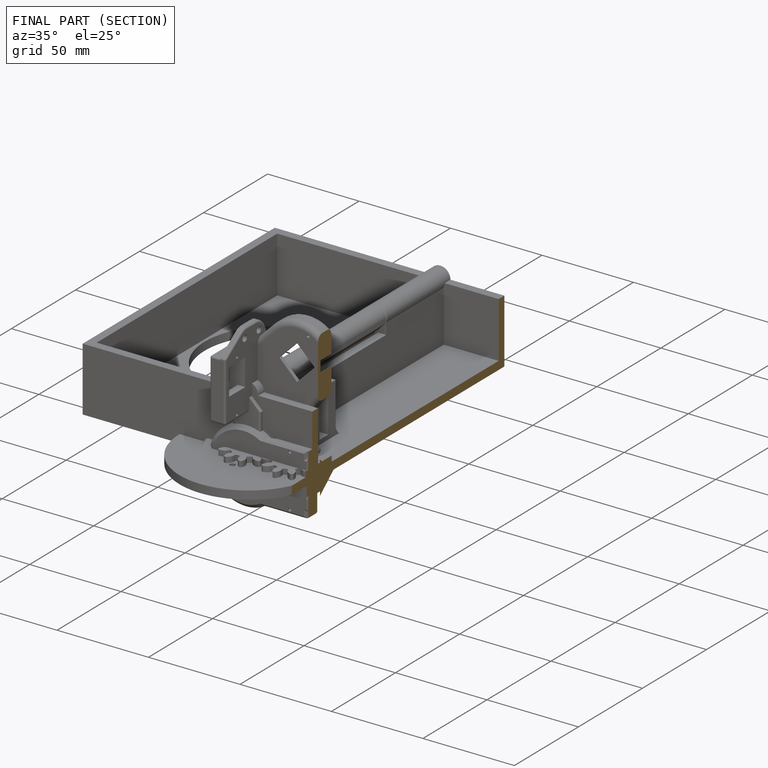
[diagram: finished part — half-section view (interior)]
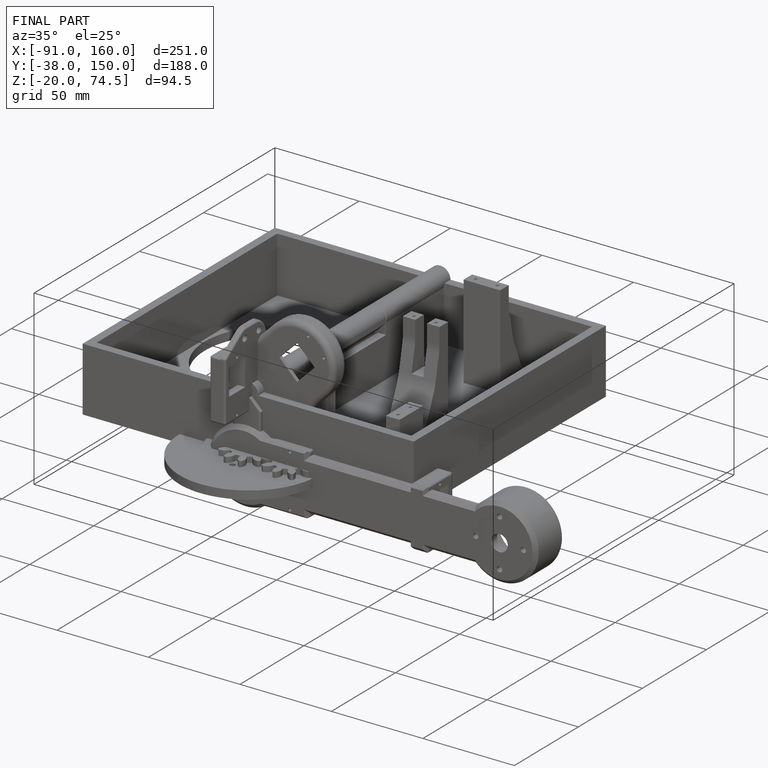
[diagram: finished part — iso view with bounding-box wireframe]
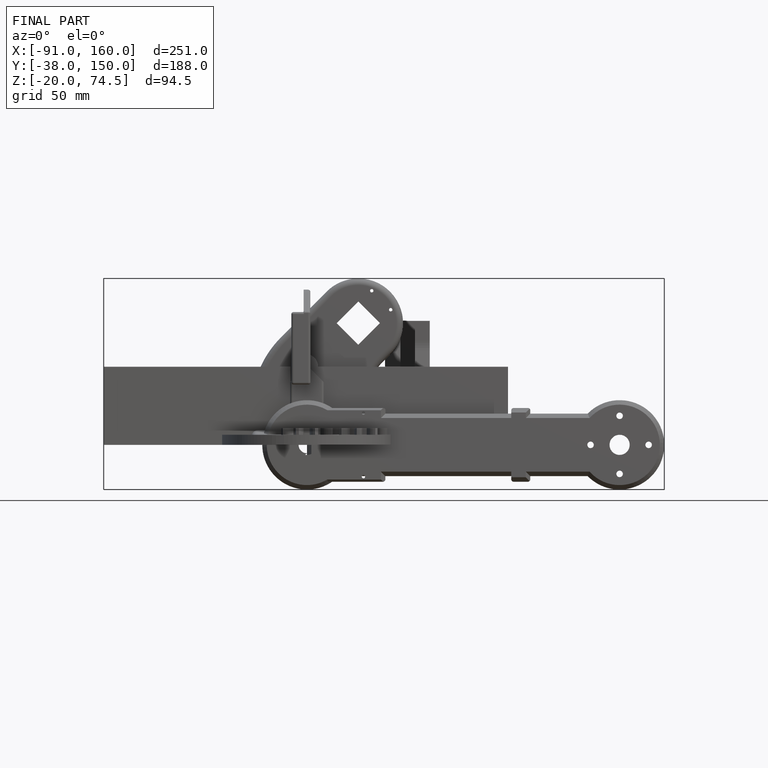
[diagram: finished part — front view with bounding-box wireframe]
